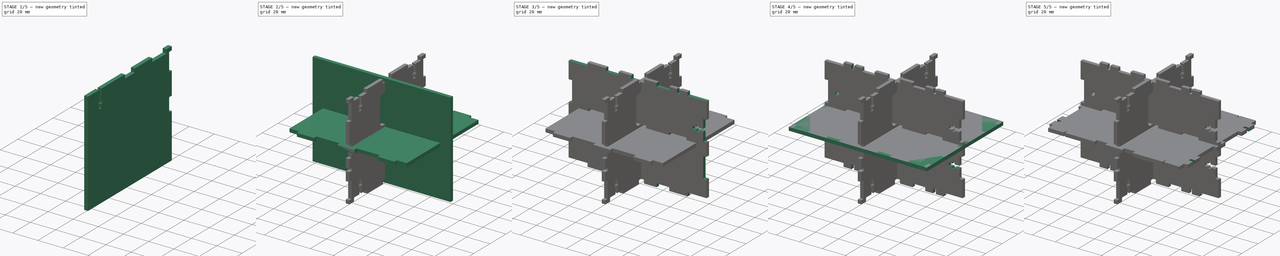
[diagram: build sequence overview — one tinted view per stage of 5, left to right]
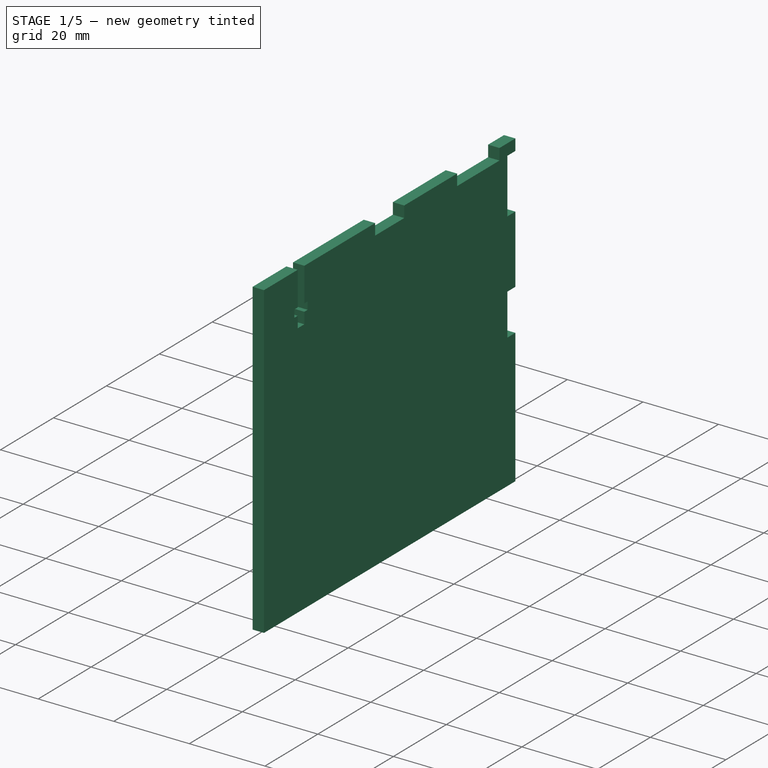
[diagram: stage 1 of 5 — iso view after this stage's code; geometry added in this stage tinted green]
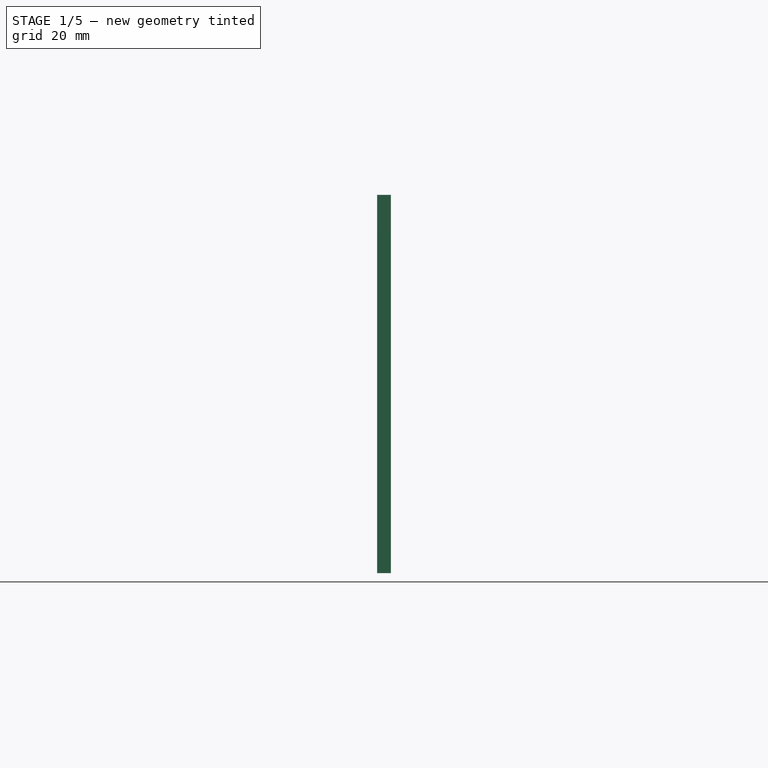
[diagram: stage 1 of 5 — front view after this stage's code; geometry added in this stage tinted green]
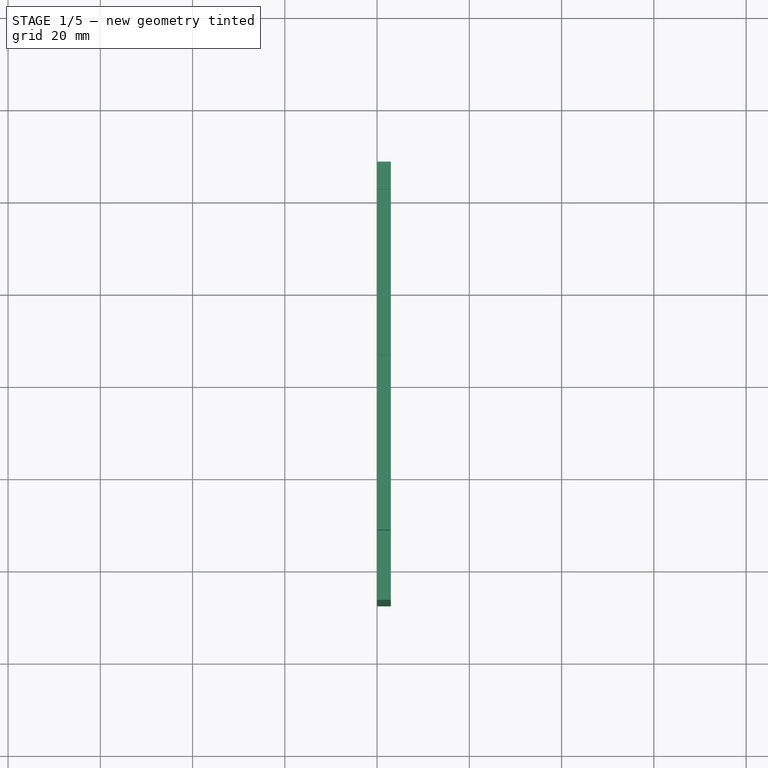
[diagram: stage 1 of 5 — top view after this stage's code; geometry added in this stage tinted green]
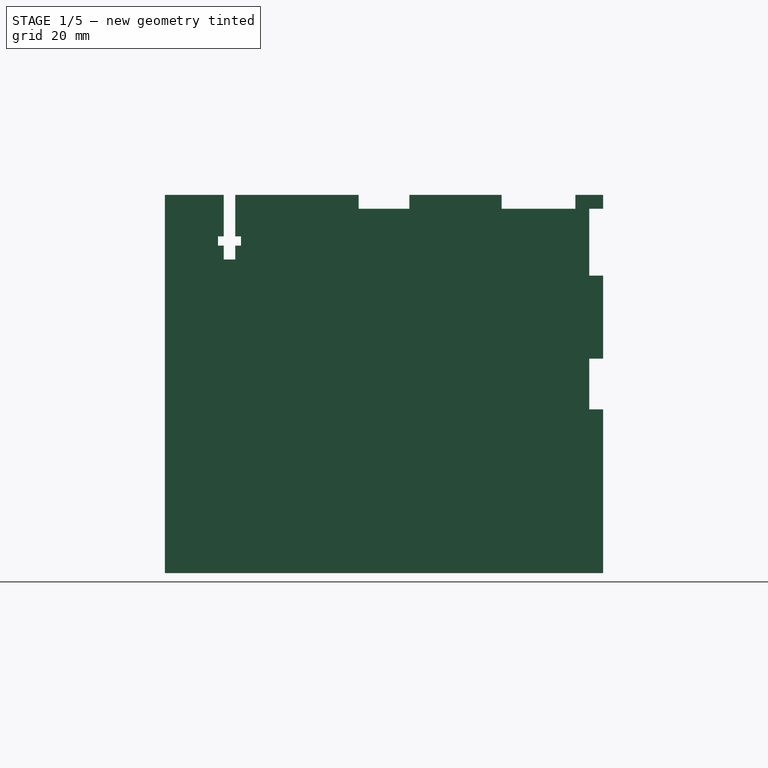
[diagram: stage 1 of 5 — right view after this stage's code; geometry added in this stage tinted green]
FCSTD DOCUMENT  (FreeCAD 0.18R16131 (Git))
Label: Lushroom_Pi
License: All rights reserved
LicenseURL: http://en.wikipedia.org/wiki/All_rights_reserved
objects: Sketcher::SketchObject×29, PartDesign::Mirrored×27, PartDesign::Pocket×22, PartDesign::MultiTransform×14, PartDesign::Pad×7, PartDesign::Body×7, Drawing::FeatureViewPart×7, PartDesign::LinearPattern×4, Drawing::FeaturePage×1
note: 139 computed .brp shape members not serialized (recipe doc carries the construction recipe); baked Part::Feature solids carry a one-line shape summary decoded from their .brp

FEATURE [PartDesign::Body] Body002  label="Mid"
  Group = -> [Sketch008,Pad004,Sketch019,Pocket014,MultiTransform009,Mirrored017,Mirrored018]
  Origin = -> Origin002
  Placement = pos=(0,0,2) rot=(0,0,1;0rad)
  Tip = -> MultiTransform009
FEATURE [Sketcher::SketchObject] Sketch020
  MapMode = 5
  Placement = pos=(0,0,0) rot=(0.57735,0.57735,0.57735;2.0944rad)
  Support = -> [YZ_Plane005]
  sketch-geometry (4):
    g0: LineSegment StartX=-47.5 StartY=41 StartZ=0 EndX=47.5 EndY=41 EndZ=0
    g1: LineSegment StartX=47.5 StartY=41 StartZ=0 EndX=47.5 EndY=-41 EndZ=0
    g2: LineSegment StartX=47.5 StartY=-41 StartZ=0 EndX=-47.5 EndY=-41 EndZ=0
    g3: LineSegment StartX=-47.5 StartY=-41 StartZ=0 EndX=-47.5 EndY=41 EndZ=0
  constraints (10):
    c: Coincident(g0,g1)
    c: Coincident(g1,g2)
    c: Coincident(g2,g3)
    c: Coincident(g3,g0)
    c: Horizontal(g2)
    c: Vertical(g3)
    c: Symmetric(g0,g0,g-2)
    c: Symmetric(g1,g0,g-1)
    c: DistanceX(g0,g0) = 95
    c: DistanceY(g1,g1) = 82
FEATURE [PartDesign::Pad] Pad005
  Length = 3
  Length2 = 100
  Placement = pos=(0,0,0) rot=(0.57735,0.57735,0.57735;2.0944rad)
  Profile = -> Sketch020
  Type = 0
FEATURE [Sketcher::SketchObject] Sketch021
  MapMode = 5
  Placement = pos=(0,0,0) rot=(0.57735,0.57735,0.57735;2.0944rad)
  Support = -> [YZ_Plane005]
  sketch-geometry (20):
    g0: LineSegment StartX=-5.5 StartY=41 StartZ=0 EndX=5.5 EndY=41 EndZ=0
    g1: LineSegment StartX=5.5 StartY=41 StartZ=0 EndX=5.5 EndY=38 EndZ=0
    g2: LineSegment StartX=5.5 StartY=38 StartZ=0 EndX=-5.5 EndY=38 EndZ=0
    g3: LineSegment StartX=-5.5 StartY=38 StartZ=0 EndX=-5.5 EndY=41 EndZ=0
    g4: LineSegment StartX=-41.5 StartY=41 StartZ=0 EndX=-25.5 EndY=41 EndZ=0
    g5: LineSegment StartX=-25.5 StartY=41 StartZ=0 EndX=-25.5 EndY=38 EndZ=0
    g6: LineSegment StartX=-25.5 StartY=38 StartZ=0 EndX=-41.5 EndY=38 EndZ=0
    g7: LineSegment StartX=-41.5 StartY=38 StartZ=0 EndX=-41.5 EndY=41 EndZ=0
    g8: LineSegment StartX=25.5 StartY=41 StartZ=0 EndX=41.5 EndY=41 EndZ=0
    g9: LineSegment StartX=41.5 StartY=41 StartZ=0 EndX=41.5 EndY=38 EndZ=0
    g10: LineSegment StartX=41.5 StartY=38 StartZ=0 EndX=25.5 EndY=38 EndZ=0
    g11: LineSegment StartX=25.5 StartY=38 StartZ=0 EndX=25.5 EndY=41 EndZ=0
    g12: LineSegment StartX=-47.5 StartY=38 StartZ=0 EndX=-44.5 EndY=38 EndZ=0
    g13: LineSegment StartX=-44.5 StartY=38 StartZ=0 EndX=-44.5 EndY=23.5 EndZ=0
    g14: LineSegment StartX=-44.5 StartY=23.5 StartZ=0 EndX=-47.5 EndY=23.5 EndZ=0
    g15: LineSegment StartX=-47.5 StartY=23.5 StartZ=0 EndX=-47.5 EndY=38 EndZ=0
    g16: LineSegment StartX=-47.5 StartY=5.5 StartZ=0 EndX=-44.5 EndY=5.5 EndZ=0
    g17: LineSegment StartX=-44.5 StartY=5.5 StartZ=0 EndX=-44.5 EndY=-5.5 EndZ=0
    g18: LineSegment StartX=-44.5 StartY=-5.5 StartZ=0 EndX=-47.5 EndY=-5.5 EndZ=0
    g19: LineSegment StartX=-47.5 StartY=-5.5 StartZ=0 EndX=-47.5 EndY=5.5 EndZ=0
  constraints (56):
    c: Coincident(g0,g1)
    c: Coincident(g1,g2)
    c: Coincident(g2,g3)
    c: Coincident(g3,g0)
    c: Horizontal(g2)
    c: Vertical(g1)
    c: Vertical(g3)
    c: Coincident(g4,g5)
    c: Coincident(g5,g6)
    c: Coincident(g6,g7)
    c: Coincident(g7,g4)
    c: Horizontal(g4)
    c: Horizontal(g6)
    c: Vertical(g5)
    c: Vertical(g7)
    c: Coincident(g8,g9)
    c: Coincident(g9,g10)
    c: Coincident(g10,g11)
    c: Coincident(g11,g8)
    c: Horizontal(g10)
    c: Vertical(g9)
    c: Vertical(g11)
    c: DistanceX(g0,g0) = 11
    c: Symmetric(g0,g0,g-2)
    c: DistanceY(g-1,g0) = 41
    c: DistanceY(g1,g1) = 3
    c: PointOnObject(g8,g0)
    c: Equal(g1,g11)
    c: Equal(g5,g3)
    c: DistanceX(g0,g8) = 20
    c: DistanceX(g8,g8) = 16
    c: Symmetric(g4,g8,g-2)
    c: Symmetric(g4,g8,g-2)
    c: Coincident(g12,g13)
    c: Coincident(g13,g14)
    c: Coincident(g14,g15)
    c: Coincident(g15,g12)
    c: Horizontal(g12)
    c: Horizontal(g14)
    c: Vertical(g13)
    c: Vertical(g15)
    c: DistanceX(g14,g-1) = 47.5
    c: Equal(g12,g7)
    c: PointOnObject(g6,g12)
    c: Coincident(g16,g17)
    c: Coincident(g17,g18)
    c: Coincident(g18,g19)
    c: Coincident(g19,g16)
    c: Horizontal(g16)
    c: Horizontal(g18)
    c: Vertical(g17)
    c: PointOnObject(g18,g15)
    c: Equal(g16,g14)
    c: Symmetric(g16,g18,g-1)
    c: DistanceY(g18,g16) = 11
    c: DistanceY(g16,g14) = 18
FEATURE [PartDesign::Pocket] Pocket015  label="Interlocking001"
  BaseFeature = -> Pad005
  Length = 5
  Length2 = 100
  Placement = pos=(0,0,0) rot=(0.57735,0.57735,0.57735;2.0944rad)
  Profile = -> Sketch021
  Reversed = true
  Type = 1
FEATURE [PartDesign::Mirrored] Mirrored019
  MirrorPlane = -> Sketch021 [H_Axis]
  Placement = pos=(0,0,0) rot=(0.57735,0.57735,0.57735;2.0944rad)
FEATURE [Sketcher::SketchObject] Sketch022  label="Screws001"
  MapMode = 5
  Placement = pos=(0,0,0) rot=(0.57735,0.57735,0.57735;2.0944rad)
  Support = -> [YZ_Plane005]
  sketch-geometry (22):
    g0: LineSegment [constr] StartX=5.5 StartY=41 StartZ=0 EndX=-5.5 EndY=41 EndZ=0
    g1: LineSegment [constr] StartX=-5.5 StartY=41 StartZ=0 EndX=-25.5 EndY=41 EndZ=0
    g2: LineSegment [constr] StartX=-25.5 StartY=41 StartZ=0 EndX=-41.5 EndY=41 EndZ=0
    g3: LineSegment StartX=-32.25 StartY=41 StartZ=0 EndX=-32.25 EndY=32 EndZ=0
    g4: LineSegment StartX=-32.25 StartY=32 StartZ=0 EndX=-31 EndY=32 EndZ=0
    g5: LineSegment StartX=-31 StartY=32 StartZ=0 EndX=-31 EndY=30 EndZ=0
    g6: LineSegment StartX=-31 StartY=30 StartZ=0 EndX=-32.25 EndY=30 EndZ=0
    g7: LineSegment StartX=-32.25 StartY=30 StartZ=0 EndX=-32.25 EndY=27 EndZ=0
    g8: LineSegment StartX=-32.25 StartY=27 StartZ=0 EndX=-34.75 EndY=27 EndZ=0
    g9: LineSegment StartX=-34.75 StartY=27 StartZ=0 EndX=-34.75 EndY=30 EndZ=0
    g10: LineSegment StartX=-34.75 StartY=30 StartZ=0 EndX=-36 EndY=30 EndZ=0
    g11: LineSegment StartX=-36 StartY=30 StartZ=0 EndX=-36 EndY=32 EndZ=0
    g12: LineSegment StartX=-36 StartY=32 StartZ=0 EndX=-34.75 EndY=32 EndZ=0
    g13: LineSegment StartX=-34.75 StartY=32 StartZ=0 EndX=-34.75 EndY=41 EndZ=0
    g14: LineSegment [constr] StartX=-33.5 StartY=41 StartZ=0 EndX=-33.5 EndY=27 EndZ=0
    g15: LineSegment StartX=-34.75 StartY=41 StartZ=0 EndX=-32.25 EndY=41 EndZ=0
    g16: LineSegment StartX=-47.5 StartY=15.75 StartZ=0 EndX=-43.5 EndY=15.75 EndZ=0
    g17: LineSegment StartX=-43.5 StartY=15.75 StartZ=0 EndX=-43.5 EndY=13.25 EndZ=0
    g18: LineSegment StartX=-43.5 StartY=13.25 StartZ=0 EndX=-47.5 EndY=13.25 EndZ=0
    g19: LineSegment StartX=-47.5 StartY=13.25 StartZ=0 EndX=-47.5 EndY=15.75 EndZ=0
    g20: LineSegment [constr] StartX=-47.5 StartY=5.5 StartZ=0 EndX=-47.5 EndY=23.5 EndZ=0
    g21: LineSegment [constr] StartX=-47.5 StartY=14.5 StartZ=0 EndX=-43.5 EndY=14.5 EndZ=0
  constraints (64):
    c: Coincident(g0,g1)
    c: Horizontal(g1)
    c: DistanceX(g0,g0) = 11
    c: Symmetric(g0,g0,g-2)
    c: DistanceX(g1,g1) = 20
    c: Coincident(g2,g1)
    c: Horizontal(g2)
    c: DistanceX(g2,g2) = 16
    c: DistanceY(g-1,g0) = 41
    c: PointOnObject(g3,g2)
    c: Vertical(g3)
    c: Coincident(g3,g4)
    c: Horizontal(g4)
    c: Coincident(g4,g5)
    c: Vertical(g5)
    c: Coincident(g5,g6)
    c: Horizontal(g6)
    c: Coincident(g6,g7)
    c: Vertical(g7)
    c: Coincident(g7,g8)
    c: Coincident(g8,g9)
    c: Vertical(g9)
    c: Coincident(g9,g10)
    c: Coincident(g10,g11)
    c: Coincident(g11,g12)
    c: Horizontal(g12)
    c: Coincident(g12,g13)
    c: PointOnObject(g13,g2)
    c: Vertical(g13)
    c: PointOnObject(g14,g2)
    c: DistanceY(g14,g14) = 14
    c: PointOnObject(g14,g8)
    c: DistanceY(g7,g7) = 3
    c: DistanceY(g5,g5) = 2
    c: Equal(g9,g7)
    c: Equal(g11,g5)
    c: DistanceX(g10,g5) = 5
    c: DistanceX(g8,g8) = 2.5
    c: Symmetric(g7,g8,g14)
    c: Symmetric(g5,g10,g14)
    c: Symmetric(g11,g4,g14)
    c: Equal(g4,g6)
    c: Equal(g12,g10)
    c: Symmetric(g1,g2,g14)
    c: Coincident(g15,g13)
    c: Coincident(g15,g3)
    c: Coincident(g16,g17)
    c: Coincident(g17,g18)
    c: Coincident(g18,g19)
    c: Coincident(g19,g16)
    c: Horizontal(g16)
    c: Horizontal(g18)
    c: Vertical(g17)
    c: Vertical(g19)
    c: DistanceY(g-1,g20) = 5.5
    c: DistanceY(g20,g20) = 18
    c: DistanceX(g20,g-1) = 47.5
    c: PointOnObject(g21,g20)
    c: DistanceX(g21,g21) = 4
    c: Symmetric(g20,g20,g21)
    c: Symmetric(g18,g16,g21)
    c: PointOnObject(g16,g20)
    c: Equal(g16,g21)
    c: DistanceY(g17,g17) = 2.5
FEATURE [Sketcher::SketchObject] Sketch023
  MapMode = 5
  Placement = pos=(0,0,0) rot=(0.57735,0.57735,0.57735;2.0944rad)
  Support = -> [YZ_Plane005]
  sketch-geometry (14):
    g0: LineSegment StartX=-20.5 StartY=5 StartZ=0 EndX=24.5 EndY=5 EndZ=0
    g1: LineSegment StartX=27.5 StartY=8 StartZ=0 EndX=27.5 EndY=32 EndZ=0
    g2: LineSegment StartX=24.5 StartY=35 StartZ=0 EndX=-20.5 EndY=35 EndZ=0
    g3: LineSegment StartX=-23.5 StartY=32 StartZ=0 EndX=-23.5 EndY=8 EndZ=0
    g4: ArcOfCircle CenterX=24.5 CenterY=32 CenterZ=0 NormalX=0 NormalY=0 NormalZ=1 AngleXU=0 Radius=3 StartAngle=5e-16 EndAngle=1.5708
    g5: ArcOfCircle CenterX=24.5 CenterY=8 CenterZ=0 NormalX=0 NormalY=0 NormalZ=1 AngleXU=0 Radius=3 StartAngle=4.71239 EndAngle=6.28319
    g6: ArcOfCircle CenterX=-20.5 CenterY=8 CenterZ=0 NormalX=0 NormalY=0 NormalZ=1 AngleXU=0 Radius=3 StartAngle=3.14159 EndAngle=4.71239
    g7: ArcOfCircle CenterX=-20.5 CenterY=32 CenterZ=0 NormalX=0 NormalY=0 NormalZ=1 AngleXU=0 Radius=3 StartAngle=1.5708 EndAngle=3.14159
    g8: LineSegment [constr] StartX=0 StartY=0 StartZ=0 EndX=47.5 EndY=0 EndZ=0
    g9: ArcOfCircle CenterX=-13 CenterY=-14.5 CenterZ=0 NormalX=0 NormalY=0 NormalZ=1 AngleXU=0 Radius=14.5 StartAngle=1.5708 EndAngle=4.71239
    g10: ArcOfCircle CenterX=13 CenterY=-14.5 CenterZ=0 NormalX=0 NormalY=0 NormalZ=1 AngleXU=0 Radius=14.5 StartAngle=4.71239 EndAngle=7.85398
    g11: LineSegment StartX=-13 StartY=-29 StartZ=0 EndX=13 EndY=-29 EndZ=0
    g12: LineSegment StartX=-13 StartY=1.6e-15 StartZ=0 EndX=13 EndY=1.8e-15 EndZ=0
    g13: LineSegment [constr] StartX=47.5 StartY=0 StartZ=0 EndX=47.5 EndY=-41 EndZ=0
  constraints (35):
    c: Horizontal(g0)
    c: Horizontal(g2)
    c: Vertical(g1)
    c: Vertical(g3)
    c: Tangent(g2,g4) = -1.5708
    c: Tangent(g1,g4) = -1.5708
    c: Tangent(g1,g5) = -1.5708
    c: Tangent(g0,g5) = -1.5708
    c: Tangent(g0,g6) = -1.5708
    c: Tangent(g3,g6) = -1.5708
    c: Tangent(g3,g7) = -1.5708
    c: Tangent(g2,g7) = -1.5708
    c: Radius(g7) = 3
    c: Equal(g4,g7)
    c: Equal(g7,g6)
    c: Equal(g6,g5)
    c: DistanceY(g-1,g0) = 5
    c: DistanceY(g0,g2) = 30
    c: Coincident(g8,g-1)
    c: PointOnObject(g8,g-1)
    c: DistanceX(g8,g8) = 47.5
    c: DistanceX(g1,g8) = 20
    c: DistanceX(g3,g1) = 51
    c: Tangent(g9,g12) = 1.5708
    c: Tangent(g9,g11) = -1.5708
    c: Tangent(g11,g10) = -1.5708
    c: Tangent(g12,g10) = 1.5708
    c: Equal(g9,g10)
    c: DistanceY(g10,g10) = 29
    c: DistanceX(g12,g12) = 26
    c: Coincident(g13,g8)
    c: Vertical(g13)
    c: DistanceY(g13,g13) = 41
    c: DistanceY(g13,g10) = 12
    c: Symmetric(g9,g10,g-2)
FEATURE [Sketcher::SketchObject] Sketch024  label="Left_Base"
  MapMode = 5
  Placement = pos=(0,0,0) rot=(0.57735,0.57735,0.57735;2.0944rad)
  Support = -> [YZ_Plane005]
  sketch-geometry (4):
    g0: LineSegment StartX=-47.5 StartY=41 StartZ=0 EndX=47.5 EndY=41 EndZ=0
    g1: LineSegment StartX=47.5 StartY=41 StartZ=0 EndX=47.5 EndY=-41 EndZ=0
    g2: LineSegment StartX=47.5 StartY=-41 StartZ=0 EndX=-47.5 EndY=-41 EndZ=0
    g3: LineSegment StartX=-47.5 StartY=-41 StartZ=0 EndX=-47.5 EndY=41 EndZ=0
  constraints (10):
    c: Coincident(g0,g1)
    c: Coincident(g1,g2)
    c: Coincident(g2,g3)
    c: Coincident(g3,g0)
    c: Horizontal(g2)
    c: Vertical(g3)
    c: Symmetric(g0,g0,g-2)
    c: Symmetric(g1,g0,g-1)
    c: DistanceX(g0,g0) = 95
    c: DistanceY(g1,g1) = 82
FEATURE [PartDesign::Pad] Pad006
  Length = 3
  Length2 = 100
  Placement = pos=(0,0,0) rot=(0.57735,0.57735,0.57735;2.0944rad)
  Profile = -> Sketch024
  Type = 0
FEATURE [Sketcher::SketchObject] Sketch025  label="Left_Interlocking"
  MapMode = 5
  Placement = pos=(0,0,0) rot=(0.57735,0.57735,0.57735;2.0944rad)
  Support = -> [YZ_Plane005]
  sketch-geometry (16):
    g0: LineSegment StartX=-5.5 StartY=41 StartZ=0 EndX=5.5 EndY=41 EndZ=0
    g1: LineSegment StartX=5.5 StartY=41 StartZ=0 EndX=5.5 EndY=38 EndZ=0
    g2: LineSegment StartX=5.5 StartY=38 StartZ=0 EndX=-5.5 EndY=38 EndZ=0
    g3: LineSegment StartX=-5.5 StartY=38 StartZ=0 EndX=-5.5 EndY=41 EndZ=0
    g4: LineSegment StartX=25.5 StartY=41 StartZ=0 EndX=41.5 EndY=41 EndZ=0
    g5: LineSegment StartX=41.5 StartY=41 StartZ=0 EndX=41.5 EndY=38 EndZ=0
    g6: LineSegment StartX=41.5 StartY=38 StartZ=0 EndX=25.5 EndY=38 EndZ=0
    g7: LineSegment StartX=25.5 StartY=38 StartZ=0 EndX=25.5 EndY=41 EndZ=0
    g8: LineSegment StartX=47.5 StartY=5.5 StartZ=0 EndX=44.5 EndY=5.5 EndZ=0
    g9: LineSegment StartX=44.5 StartY=5.5 StartZ=0 EndX=44.5 EndY=-5.5 EndZ=0
    g10: LineSegment StartX=44.5 StartY=-5.5 StartZ=0 EndX=47.5 EndY=-5.5 EndZ=0
    g11: LineSegment StartX=47.5 StartY=-5.5 StartZ=0 EndX=47.5 EndY=5.5 EndZ=0
    g12: LineSegment StartX=47.5 StartY=38 StartZ=0 EndX=44.5 EndY=38 EndZ=0
    g13: LineSegment StartX=44.5 StartY=38 StartZ=0 EndX=44.5 EndY=23.5 EndZ=0
    g14: LineSegment StartX=44.5 StartY=23.5 StartZ=0 EndX=47.5 EndY=23.5 EndZ=0
    g15: LineSegment StartX=47.5 StartY=23.5 StartZ=0 EndX=47.5 EndY=38 EndZ=0
  constraints (46):
    c: Coincident(g0,g1)
    c: Coincident(g1,g2)
    c: Coincident(g2,g3)
    c: Coincident(g3,g0)
    c: Horizontal(g2)
    c: Vertical(g1)
    c: Vertical(g3)
    c: Coincident(g4,g5)
    c: Coincident(g5,g6)
    c: Coincident(g6,g7)
    c: Coincident(g7,g4)
    c: Horizontal(g4)
    c: Horizontal(g6)
    c: Vertical(g5)
    c: Vertical(g7)
    c: DistanceX(g0,g0) = 11
    c: Symmetric(g0,g0,g-2)
    c: DistanceY(g-1,g0) = 41
    c: DistanceY(g1,g1) = 3
    c: PointOnObject(g4,g0)
    c: Equal(g1,g7)
    c: DistanceX(g0,g4) = 20
    c: DistanceX(g4,g4) = 16
    c: Coincident(g8,g9)
    c: Coincident(g9,g10)
    c: Coincident(g10,g11)
    c: Coincident(g11,g8)
    c: Horizontal(g8)
    c: Horizontal(g10)
    c: Vertical(g9)
    c: Coincident(g12,g13)
    c: Coincident(g13,g14)
    c: Coincident(g14,g15)
    c: Coincident(g15,g12)
    c: Horizontal(g12)
    c: Horizontal(g14)
    c: Vertical(g13)
    c: Vertical(g15)
    c: DistanceX(g-1,g8) = 47.5
    c: Equal(g8,g1)
    c: DistanceY(g11,g11) = 11
    c: Symmetric(g8,g10,g-1)
    c: PointOnObject(g14,g11)
    c: Equal(g14,g8)
    c: DistanceY(g8,g14) = 18
    c: PointOnObject(g12,g6)
FEATURE [PartDesign::Pocket] Pocket018
  BaseFeature = -> Pad006
  Length = 5
  Length2 = 100
  Placement = pos=(0,0,0) rot=(0.57735,0.57735,0.57735;2.0944rad)
  Profile = -> Sketch025
  Reversed = true
  Type = 1
FEATURE [Sketcher::SketchObject] Sketch026  label="Screw1_Sketch"
  MapMode = 5
  Placement = pos=(0,0,0) rot=(0.57735,0.57735,0.57735;2.0944rad)
  Support = -> [YZ_Plane005]
  sketch-geometry (16):
    g0: LineSegment [constr] StartX=5.5 StartY=41 StartZ=0 EndX=-5.5 EndY=41 EndZ=0
    g1: LineSegment [constr] StartX=-5.5 StartY=41 StartZ=0 EndX=-25.5 EndY=41 EndZ=0
    g2: LineSegment [constr] StartX=-25.5 StartY=41 StartZ=0 EndX=-41.5 EndY=41 EndZ=0
    g3: LineSegment StartX=-32.25 StartY=41 StartZ=0 EndX=-32.25 EndY=32 EndZ=0
    g4: LineSegment StartX=-32.25 StartY=32 StartZ=0 EndX=-31 EndY=32 EndZ=0
    g5: LineSegment StartX=-31 StartY=32 StartZ=0 EndX=-31 EndY=30 EndZ=0
    g6: LineSegment StartX=-31 StartY=30 StartZ=0 EndX=-32.25 EndY=30 EndZ=0
    g7: LineSegment StartX=-32.25 StartY=30 StartZ=0 EndX=-32.25 EndY=27 EndZ=0
    g8: LineSegment StartX=-32.25 StartY=27 StartZ=0 EndX=-34.75 EndY=27 EndZ=0
    g9: LineSegment StartX=-34.75 StartY=27 StartZ=0 EndX=-34.75 EndY=30 EndZ=0
    g10: LineSegment StartX=-34.75 StartY=30 StartZ=0 EndX=-36 EndY=30 EndZ=0
    g11: LineSegment StartX=-36 StartY=30 StartZ=0 EndX=-36 EndY=32 EndZ=0
    g12: LineSegment StartX=-36 StartY=32 StartZ=0 EndX=-34.75 EndY=32 EndZ=0
    g13: LineSegment StartX=-34.75 StartY=32 StartZ=0 EndX=-34.75 EndY=41 EndZ=0
    g14: LineSegment [constr] StartX=-33.5 StartY=41 StartZ=0 EndX=-33.5 EndY=27 EndZ=0
    g15: LineSegment StartX=-34.75 StartY=41 StartZ=0 EndX=-32.25 EndY=41 EndZ=0
  constraints (46):
    c: Coincident(g0,g1)
    c: Horizontal(g1)
    c: DistanceX(g0,g0) = 11
    c: Symmetric(g0,g0,g-2)
    c: DistanceX(g1,g1) = 20
    c: Coincident(g2,g1)
    c: Horizontal(g2)
    c: DistanceX(g2,g2) = 16
    c: DistanceY(g-1,g0) = 41
    c: PointOnObject(g3,g2)
    c: Vertical(g3)
    c: Coincident(g3,g4)
    c: Horizontal(g4)
    c: Coincident(g4,g5)
    c: Vertical(g5)
    c: Coincident(g5,g6)
    c: Horizontal(g6)
    c: Coincident(g6,g7)
    c: Vertical(g7)
    c: Coincident(g7,g8)
    c: Coincident(g8,g9)
    c: Vertical(g9)
    c: Coincident(g9,g10)
    c: Coincident(g10,g11)
    c: Coincident(g11,g12)
    c: Horizontal(g12)
    c: Coincident(g12,g13)
    c: PointOnObject(g13,g2)
    c: Vertical(g13)
    c: PointOnObject(g14,g2)
    c: DistanceY(g14,g14) = 14
    c: PointOnObject(g14,g8)
    c: DistanceY(g7,g7) = 3
    c: DistanceY(g5,g5) = 2
    c: Equal(g9,g7)
    c: Equal(g11,g5)
    c: DistanceX(g10,g5) = 5
    c: DistanceX(g8,g8) = 2.5
    c: Symmetric(g7,g8,g14)
    c: Symmetric(g5,g10,g14)
    c: Symmetric(g11,g4,g14)
    c: Equal(g4,g6)
    c: Equal(g12,g10)
    c: Symmetric(g1,g2,g14)
    c: Coincident(g15,g13)
    c: Coincident(g15,g3)
FEATURE [PartDesign::Pocket] Pocket019  label="Screw1"
  BaseFeature = -> Pocket018
  Length = 5
  Length2 = 100
  Placement = pos=(0,0,0) rot=(0.57735,0.57735,0.57735;2.0944rad)
  Profile = -> Sketch026
  Reversed = true
  Type = 1
FEATURE [PartDesign::Body] Body006  label="Left"
  Group = -> [Pad006,Pocket018,Pocket019,MultiTransform011,Mirrored022,Mirrored023,Sketch027,Pocket020,MultiTransform012,Mirrored024,Mirrored025,Sketch028,Pocket021]
  Origin = -> Origin006
  Placement = pos=(-60,0,0) rot=(0,0,1;0rad)
  Tip = -> Pocket021
FEATURE [PartDesign::Mirrored] Mirrored026
  MirrorPlane = -> Sketch022 [V_Axis]
  Placement = pos=(0,0,0) rot=(0.57735,0.57735,0.57735;2.0944rad)
FEATURE [PartDesign::Mirrored] Mirrored027
  MirrorPlane = -> Sketch022 [H_Axis]
  Placement = pos=(0,0,0) rot=(0.57735,0.57735,0.57735;2.0944rad)
FEATURE [Drawing::FeatureViewPart] Ortho  label="Ortho_Bottom"
  Direction = (0,0,-1)
  HiddenWidth = 0.15
  LineWidth = 0.35
  Rotation = 180
  ShowHiddenLines = false
  ShowSmoothLines = false
  Source = -> Body
  Tolerance = 0.05
  ViewResult = <blob: 13495 chars omitted>
  Visible = true
  X = 70
  Y = 70
FEATURE [Drawing::FeatureViewPart] Ortho001  label="Ortho_Top"
  Direction = (0,0,1)
  HiddenWidth = 0.15
  LineWidth = 0.35
  Rotation = 0
  ShowHiddenLines = false
  ShowSmoothLines = false
  Source = -> Body001
  Tolerance = 0.05
  ViewResult = <blob: 6505 chars omitted>
  Visible = true
  X = 200
  Y = 70
FEATURE [Drawing::FeatureViewPart] Ortho002  label="Ortho_Mid"
  Direction = (0,0,1)
  HiddenWidth = 0.15
  LineWidth = 0.35
  Rotation = 0
  ShowHiddenLines = false
  ShowSmoothLines = false
  Source = -> Body002
  Tolerance = 0.05
  ViewResult = <g id="Ortho_0_0"\n   transform="rotate(0,320,70) translate(320,70) scale(1,1)"\n  >\n<g   fill="none"\n   stroke="rgb(0, 0, 0)"\n   stroke-linecap="butt"\n   stroke-linejoin="miter"\n   stroke-width="0.350000"\n   transform="scale(1,-1)"\n  >\n<path id= "1" d=" M -42.5 -47.5 L -27.5 -47.5 " />\n<path id= "2" d=" M -27.5 -47.5 L -27.5 -44.5 " />\n<path id= "3" d=" M -51 44.5 L -42.5 44.5 " />\n<path id= "4" d=" M -42.5 44.5 L -42.5 47.5 " />\n<path id= "5" d=" M -27.5 47.5 L -42.5 47.5 " />\n<path id= "6" d=" M -27.5 47.5 L -27.5 44.5 " />\n<path id= "7" d=" M -27.5 44.5 L -7.5 44.5 " />\n<path id= "8" d=" M -7.5 44.5 L -7.5 47.5 " />\n<path id= "9" d=" M 7.5 47.5 L -7.5 47.5 " />\n<path id= "10" d=" M 7.5 44.5 L 7.5 47.5 " />\n<path id= "11" d=" M 27.5 44.5 L 7.5 44.5 " />\n<path id= "12" d=" M 27.5 47.5 L 27.5 44.5 " />\n<path id= "13" d=" M 42.5 47.5 L 27.5 47.5 " />\n<path id= "14" d=" M 42.5 44.5 L 42.5 47.5 " />\n<path id= "15" d=" M 51 44.5 L 42.5 44.5 " />\n<path id= "16" d=" M 51 -44.5 L 51 44.5 " />\n<path id= "17" d=" M 51 -44.5 L 42.5 -44.5 " />\n<path id= "18" d=" M 42.5 -44.5 L 42.5 -47.5 " />\n<path id= "19" d=" M 27.5 -47.5 L 42.5 -47.5 " />\n<path id= "20" d=" M 27.5 -47.5 L 27.5 -44.5 " />\n<path id= "21" d=" M 27.5 -44.5 L 7.5 -44.5 " />\n<path id= "22" d=" M 7.5 -44.5 L 7.5 -47.5 " />\n<path id= "23" d=" M -7.5 -47.5 L 7.5 -47.5 " />\n<path id= "24" d=" M -7.5 -44.5 L -7.5 -47.5 " />\n<path id= "25" d=" M -27.5 -44.5 L -7.5 -44.5 " />\n<path id= "26" d=" M -42.5 -44.5 L -42.5 -47.5 " />\n<path id= "27" d=" M -51 -44.5 L -42.5 -44.5 " />\n<path id= "28" d=" M -51 44.5 L -51 -44.5 " />\n</g>\n</g>
  Visible = true
  X = 320
  Y = 70
FEATURE [Drawing::FeatureViewPart] Ortho003  label="Ortho_Front"
  Direction = (0,1,0)
  HiddenWidth = 0.15
  LineWidth = 0.35
  Rotation = 90
  ShowHiddenLines = false
  ShowSmoothLines = false
  Source = -> Body003
  Tolerance = 0.05
  ViewResult = <blob: 5884 chars omitted>
  Visible = true
  X = 70
  Y = 180
FEATURE [Drawing::FeatureViewPart] Ortho004  label="Ortho_Back"
  Direction = (0,-1,0)
  HiddenWidth = 0.15
  LineWidth = 0.35
  Rotation = 90
  ShowHiddenLines = false
  ShowSmoothLines = false
  Source = -> Body004
  Tolerance = 0.05
  ViewResult = <blob: 10416 chars omitted>
  Visible = true
  X = 200.5
  Y = 180
FEATURE [PartDesign::Mirrored] Mirrored028
  MirrorPlane = -> Sketch021 [V_Axis]
  Placement = pos=(0,0,0) rot=(0.57735,0.57735,0.57735;2.0944rad)
FEATURE [PartDesign::MultiTransform] MultiTransform010
  BaseFeature = -> Pocket015
  Originals = -> [Pocket015]
  Placement = pos=(0,0,0) rot=(0.57735,0.57735,0.57735;2.0944rad)
  Transformations = -> [Mirrored019,Mirrored028]
FEATURE [PartDesign::Pocket] Pocket016
  BaseFeature = -> MultiTransform010
  Length = 5
  Length2 = 100
  Placement = pos=(0,0,0) rot=(0.57735,0.57735,0.57735;2.0944rad)
  Profile = -> Sketch022
  Reversed = true
  Type = 1
FEATURE [PartDesign::Pocket] Pocket017
  BaseFeature = -> Pocket016
  Length = 5
  Length2 = 100
  Placement = pos=(0,0,0) rot=(0.57735,0.57735,0.57735;2.0944rad)
  Profile = -> Sketch023
  Reversed = true
  Type = 1
FEATURE [PartDesign::MultiTransform] MultiTransform013
  BaseFeature = -> Pocket017
  Originals = -> [Pocket016]
  Placement = pos=(0,0,0) rot=(0.57735,0.57735,0.57735;2.0944rad)
  Transformations = -> [Mirrored026,Mirrored027]
FEATURE [PartDesign::Body] Body005  label="Right"
  Group = -> [Sketch020,Pad005,Sketch021,Pocket015,MultiTransform010,Mirrored019,Sketch022,Pocket016,Sketch023,Pocket017,MultiTransform013,Mirrored026,Mirrored027,Mirrored028]
  Origin = -> Origin005
  Placement = pos=(57,0,0) rot=(0,0,1;0rad)
  Tip = -> MultiTransform013
FEATURE [Drawing::FeatureViewPart] Ortho005  label="Ortho_Right"
  Direction = (1,0,0)
  HiddenWidth = 0.15
  LineWidth = 0.35
  Rotation = -90
  ShowHiddenLines = false
  ShowSmoothLines = false
  Source = -> Body005
  Tolerance = 0.05
  ViewResult = <blob: 6273 chars omitted>
  Visible = true
  X = 320
  Y = 180
FEATURE [Drawing::FeatureViewPart] Ortho006  label="Ortho_0_0"
  Direction = (-1,0,0)
  HiddenWidth = 0.15
  LineWidth = 0.35
  Rotation = -90
  ShowHiddenLines = false
  ShowSmoothLines = false
  Source = -> Body006
  Tolerance = 0.05
  ViewResult = <blob: 5821 chars omitted>
  Visible = true
  X = 420.5
  Y = 180
FEATURE [Drawing::FeaturePage] Page
  Group = -> [Ortho,Ortho001,Ortho002,Ortho003,Ortho004,Ortho005,Ortho006]
  Template = /Applications/FreeCAD/0.18/FreeCAD.app/Contents/Resources/data/Mod/Drawing/Templates/A1_Landscape_plain.svg
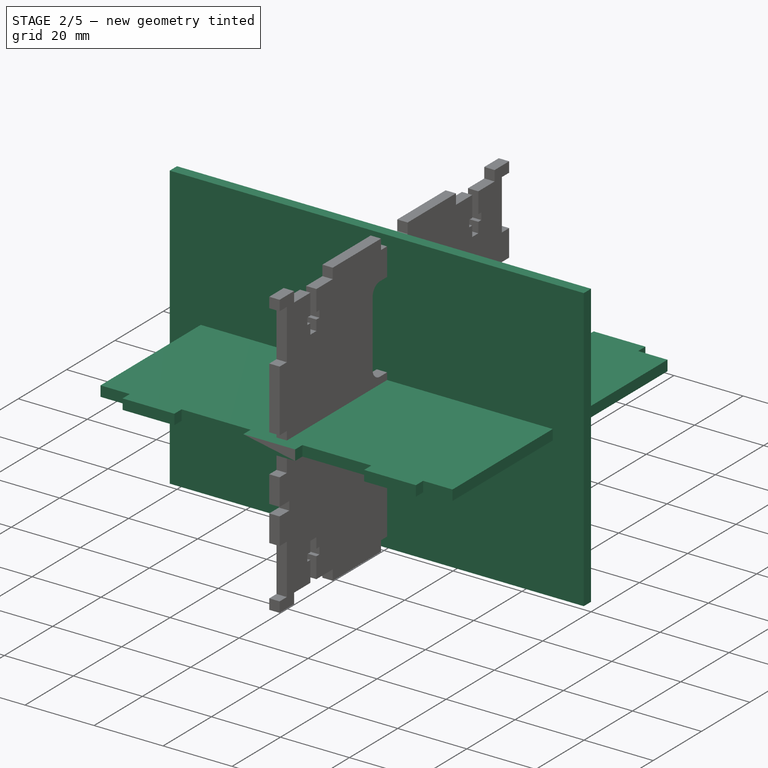
[diagram: stage 2 of 5 — iso view after this stage's code; geometry added in this stage tinted green]
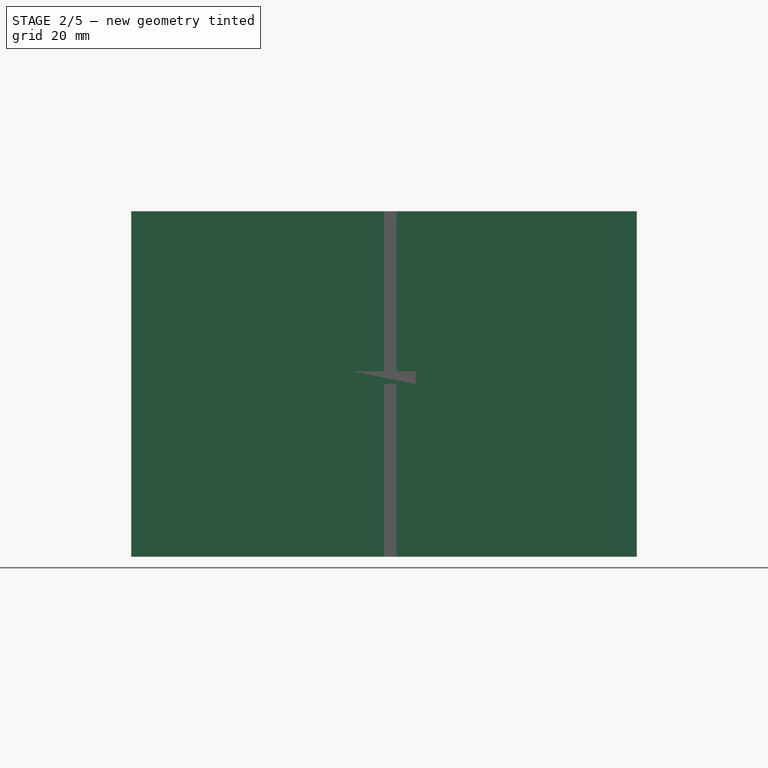
[diagram: stage 2 of 5 — front view after this stage's code; geometry added in this stage tinted green]
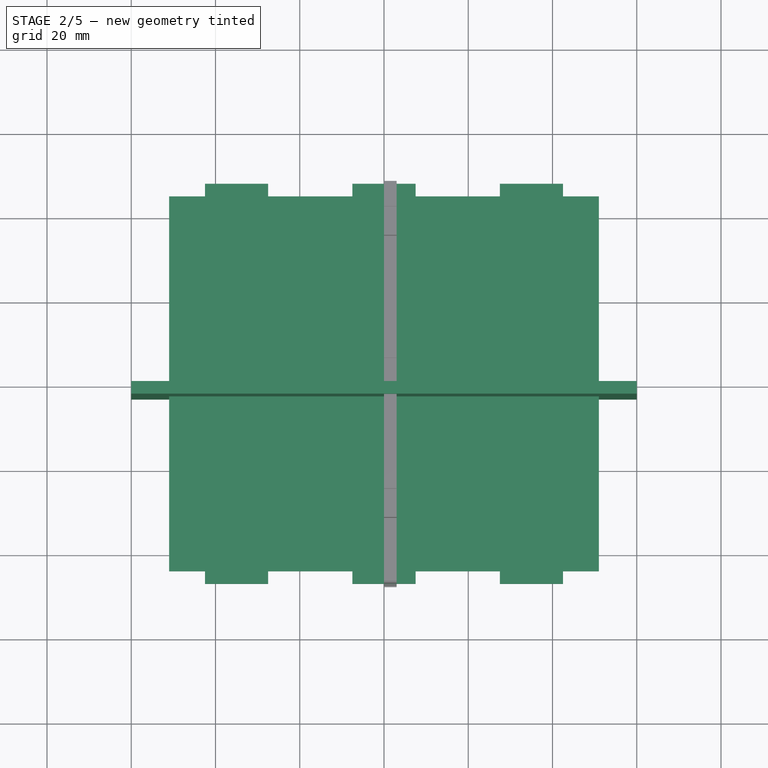
[diagram: stage 2 of 5 — top view after this stage's code; geometry added in this stage tinted green]
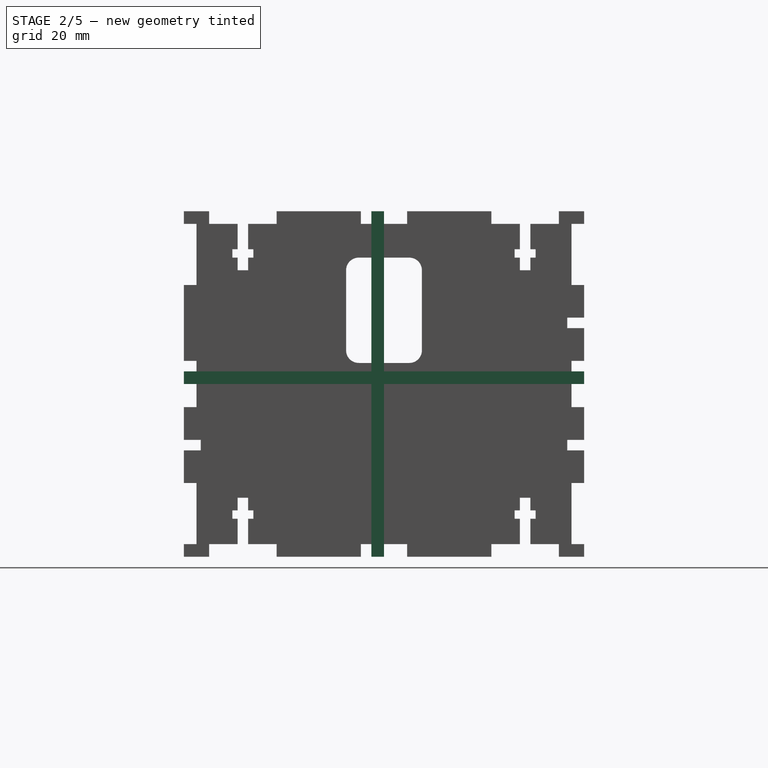
[diagram: stage 2 of 5 — right view after this stage's code; geometry added in this stage tinted green]
FEATURE [PartDesign::Body] Body001  label="Top"
  Group = -> [Pad001,Pocket003,MultiTransform003,Mirrored006,Mirrored007,Pocket004,MultiTransform004,Mirrored008,Mirrored009,Sketch007,Pocket005]
  Origin = -> Origin001
  Placement = pos=(0,0,38) rot=(0,0,1;0rad)
  Tip = -> Pocket005
FEATURE [Sketcher::SketchObject] Sketch008
  MapMode = 5
  Support = -> [XY_Plane002]
  sketch-geometry (4):
    g0: LineSegment StartX=-51 StartY=-47.5 StartZ=0 EndX=51 EndY=-47.5 EndZ=0
    g1: LineSegment StartX=51 StartY=-47.5 StartZ=0 EndX=51 EndY=47.5 EndZ=0
    g2: LineSegment StartX=51 StartY=47.5 StartZ=0 EndX=-51 EndY=47.5 EndZ=0
    g3: LineSegment StartX=-51 StartY=47.5 StartZ=0 EndX=-51 EndY=-47.5 EndZ=0
  constraints (10):
    c: Coincident(g0,g1)
    c: Coincident(g1,g2)
    c: Coincident(g2,g3)
    c: Coincident(g3,g0)
    c: Horizontal(g0)
    c: DistanceY(g1,g1) = 95
    c: Symmetric(g1,g0,g-1)
    c: Vertical(g3)
    c: DistanceX(g2,g2) = 102
    c: Symmetric(g1,g2,g-2)
FEATURE [Sketcher::SketchObject] Sketch009  label="Front_Base"
  MapMode = 5
  Placement = pos=(0,0,0) rot=(1,0,0;1.5708rad)
  Support = -> [XZ_Plane003]
  sketch-geometry (4):
    g0: LineSegment StartX=-60 StartY=-41 StartZ=0 EndX=60 EndY=-41 EndZ=0
    g1: LineSegment StartX=60 StartY=-41 StartZ=0 EndX=60 EndY=41 EndZ=0
    g2: LineSegment StartX=60 StartY=41 StartZ=0 EndX=-60 EndY=41 EndZ=0
    g3: LineSegment StartX=-60 StartY=41 StartZ=0 EndX=-60 EndY=-41 EndZ=0
  constraints (10):
    c: Coincident(g0,g1)
    c: Coincident(g1,g2)
    c: Coincident(g2,g3)
    c: Coincident(g3,g0)
    c: Horizontal(g0)
    c: Vertical(g3)
    c: DistanceX(g2,g2) = 120
    c: DistanceY(g1,g1) = 82
    c: Symmetric(g1,g0,g-1)
    c: Symmetric(g2,g1,g-2)
FEATURE [Sketcher::SketchObject] Sketch010  label="Front_Interlocking_Sides"
  ExternalGeometry = -> [Sketch009]
  MapMode = 5
  Placement = pos=(0,0,0) rot=(1,0,0;1.5708rad)
  Support = -> [XZ_Plane003]
  sketch-geometry (16):
    g0: LineSegment StartX=-60 StartY=41 StartZ=0 EndX=-43.5 EndY=41 EndZ=0
    g1: LineSegment StartX=-43.5 StartY=41 StartZ=0 EndX=-43.5 EndY=38 EndZ=0
    g2: LineSegment StartX=-43.5 StartY=38 StartZ=0 EndX=-60 EndY=38 EndZ=0
    g3: LineSegment StartX=-60 StartY=38 StartZ=0 EndX=-60 EndY=41 EndZ=0
    g4: LineSegment StartX=-27.5 StartY=41 StartZ=0 EndX=-16.5 EndY=41 EndZ=0
    g5: LineSegment StartX=-16.5 StartY=41 StartZ=0 EndX=-16.5 EndY=38 EndZ=0
    g6: LineSegment StartX=-16.5 StartY=38 StartZ=0 EndX=-27.5 EndY=38 EndZ=0
    g7: LineSegment StartX=-27.5 StartY=38 StartZ=0 EndX=-27.5 EndY=41 EndZ=0
    g8: LineSegment StartX=-5.5 StartY=41 StartZ=0 EndX=5.5 EndY=41 EndZ=0
    g9: LineSegment StartX=5.5 StartY=41 StartZ=0 EndX=5.5 EndY=38 EndZ=0
    g10: LineSegment StartX=5.5 StartY=38 StartZ=0 EndX=-5.5 EndY=38 EndZ=0
    g11: LineSegment StartX=-5.5 StartY=38 StartZ=0 EndX=-5.5 EndY=41 EndZ=0
    g12: LineSegment StartX=-60 StartY=23.5 StartZ=0 EndX=-57 EndY=23.5 EndZ=0
    g13: LineSegment StartX=-57 StartY=23.5 StartZ=0 EndX=-57 EndY=5.5 EndZ=0
    g14: LineSegment StartX=-57 StartY=5.5 StartZ=0 EndX=-60 EndY=5.5 EndZ=0
    g15: LineSegment StartX=-60 StartY=5.5 StartZ=0 EndX=-60 EndY=23.5 EndZ=0
  constraints (46):
    c: Coincident(g0,g1)
    c: Coincident(g1,g2)
    c: Coincident(g2,g3)
    c: Coincident(g3,g0)
    c: Horizontal(g0)
    c: Horizontal(g2)
    c: Vertical(g1)
    c: Vertical(g3)
    c: Coincident(g4,g5)
    c: Coincident(g5,g6)
    c: Coincident(g6,g7)
    c: Coincident(g7,g4)
    c: Horizontal(g4)
    c: Horizontal(g6)
    c: Vertical(g5)
    c: Vertical(g7)
    c: Coincident(g8,g9)
    c: Coincident(g9,g10)
    c: Coincident(g10,g11)
    c: Coincident(g11,g8)
    c: Horizontal(g10)
    c: Vertical(g9)
    c: Vertical(g11)
    c: Coincident(g0,g-4)
    c: PointOnObject(g4,g-3)
    c: PointOnObject(g8,g-3)
    c: DistanceX(g10,g10) = 11
    c: DistanceY(g9,g9) = 3
    c: Equal(g1,g5)
    c: Equal(g5,g9)
    c: Equal(g6,g10)
    c: Symmetric(g8,g8,g-2)
    c: DistanceX(g4,g8) = 11
    c: Coincident(g12,g13)
    c: Coincident(g13,g14)
    c: Coincident(g14,g15)
    c: Coincident(g15,g12)
    c: Horizontal(g12)
    c: Horizontal(g14)
    c: Vertical(g13)
    c: Vertical(g15)
    c: Equal(g12,g1)
    c: PointOnObject(g12,g-4)
    c: DistanceY(g13,g13) = 18
    c: DistanceY(g-1,g14) = 5.5
    c: DistanceX(g0,g4) = 16
FEATURE [PartDesign::Pad] Pad002
  Length = 3
  Length2 = 100
  Placement = pos=(0,0,0) rot=(1,0,0;1.5708rad)
  Profile = -> Sketch009
  Type = 0
FEATURE [PartDesign::Body] Body004  label="Back"
  Group = -> [Pad003,Pocket010,MultiTransform006,Mirrored012,Mirrored013,Pocket011,Pocket012,MultiTransform007,Mirrored014,Mirrored015,Sketch018,Pocket013,MultiTransform008,LinearPattern002,LinearPattern003,Mirrored016]
  Origin = -> Origin004
  Placement = pos=(0,47.5,0) rot=(0,0,1;0rad)
  Tip = -> MultiTransform008
FEATURE [PartDesign::Pad] Pad004
  Length = 3
  Length2 = 100
  Profile = -> Sketch008
  Type = 0
FEATURE [Sketcher::SketchObject] Sketch019  label="Interlocking"
  ExternalGeometry = -> [Pad004]
  MapMode = 5
  Support = -> [XY_Plane002]
  sketch-geometry (8):
    g0: LineSegment StartX=-51 StartY=47.5 StartZ=0 EndX=-42.5 EndY=47.5 EndZ=0
    g1: LineSegment StartX=-42.5 StartY=47.5 StartZ=0 EndX=-42.5 EndY=44.5 EndZ=0
    g2: LineSegment StartX=-42.5 StartY=44.5 StartZ=0 EndX=-51 EndY=44.5 EndZ=0
    g3: LineSegment StartX=-51 StartY=44.5 StartZ=0 EndX=-51 EndY=47.5 EndZ=0
    g4: LineSegment StartX=-27.5 StartY=47.5 StartZ=0 EndX=-7.5 EndY=47.5 EndZ=0
    g5: LineSegment StartX=-7.5 StartY=47.5 StartZ=0 EndX=-7.5 EndY=44.5 EndZ=0
    g6: LineSegment StartX=-7.5 StartY=44.5 StartZ=0 EndX=-27.5 EndY=44.5 EndZ=0
    g7: LineSegment StartX=-27.5 StartY=44.5 StartZ=0 EndX=-27.5 EndY=47.5 EndZ=0
  constraints (23):
    c: Coincident(g0,g1)
    c: Coincident(g1,g2)
    c: Coincident(g2,g3)
    c: Coincident(g3,g0)
    c: Horizontal(g0)
    c: Horizontal(g2)
    c: Vertical(g1)
    c: Vertical(g3)
    c: Coincident(g0,g-3)
    c: Coincident(g4,g5)
    c: Coincident(g5,g6)
    c: Coincident(g6,g7)
    c: Coincident(g7,g4)
    c: Horizontal(g4)
    c: Horizontal(g6)
    c: Vertical(g5)
    c: Vertical(g7)
    c: PointOnObject(g4,g-3)
    c: DistanceX(g4,g-1) = 7.5
    c: DistanceX(g4,g4) = 20
    c: DistanceY(g5,g5) = 3
    c: DistanceX(g0,g4) = 15
    c: Equal(g1,g7)
FEATURE [PartDesign::Pocket] Pocket014
  BaseFeature = -> Pad004
  Length = 5
  Length2 = 100
  Profile = -> Sketch019
  Reversed = true
  Type = 1
FEATURE [PartDesign::Mirrored] Mirrored017
  MirrorPlane = -> Sketch019 [V_Axis]
FEATURE [PartDesign::Mirrored] Mirrored018
  MirrorPlane = -> Sketch019 [H_Axis]
FEATURE [PartDesign::MultiTransform] MultiTransform009
  BaseFeature = -> Pocket014
  Originals = -> [Pocket014]
  Transformations = -> [Mirrored017,Mirrored018]
FEATURE [PartDesign::Mirrored] Mirrored022
  MirrorPlane = -> Sketch026 [V_Axis]
  Placement = pos=(0,0,0) rot=(0.57735,0.57735,0.57735;2.0944rad)
FEATURE [PartDesign::Mirrored] Mirrored023
  MirrorPlane = -> Sketch026 [H_Axis]
  Placement = pos=(0,0,0) rot=(0.57735,0.57735,0.57735;2.0944rad)
FEATURE [PartDesign::MultiTransform] MultiTransform011  label="Mirrored Screw1"
  BaseFeature = -> Pocket019
  Originals = -> [Pocket019]
  Placement = pos=(0,0,0) rot=(0.57735,0.57735,0.57735;2.0944rad)
  Transformations = -> [Mirrored022,Mirrored023]
FEATURE [Sketcher::SketchObject] Sketch027
  MapMode = 5
  Placement = pos=(0,0,0) rot=(0.57735,0.57735,0.57735;2.0944rad)
  Support = -> [YZ_Plane006]
  sketch-geometry (8):
    g0: LineSegment StartX=-6 StartY=30 StartZ=0 EndX=6 EndY=30 EndZ=0
    g1: LineSegment StartX=9 StartY=27 StartZ=0 EndX=9 EndY=8 EndZ=0
    g2: LineSegment StartX=6 StartY=5 StartZ=0 EndX=-6 EndY=5 EndZ=0
    g3: LineSegment StartX=-9 StartY=8 StartZ=0 EndX=-9 EndY=27 EndZ=0
    g4: ArcOfCircle CenterX=-6 CenterY=27 CenterZ=0 NormalX=0 NormalY=0 NormalZ=1 AngleXU=0 Radius=3 StartAngle=1.5708 EndAngle=3.14159
    g5: ArcOfCircle CenterX=6 CenterY=27 CenterZ=0 NormalX=0 NormalY=0 NormalZ=1 AngleXU=0 Radius=3 StartAngle=-9e-16 EndAngle=1.5708
    g6: ArcOfCircle CenterX=6 CenterY=8 CenterZ=0 NormalX=0 NormalY=0 NormalZ=1 AngleXU=0 Radius=3 StartAngle=4.71239 EndAngle=6.28319
    g7: ArcOfCircle CenterX=-6 CenterY=8 CenterZ=0 NormalX=0 NormalY=0 NormalZ=1 AngleXU=0 Radius=3 StartAngle=3.14159 EndAngle=4.71239
  constraints (19):
    c: Horizontal(g0)
    c: Horizontal(g2)
    c: Vertical(g1)
    c: Vertical(g3)
    c: Tangent(g0,g4) = 1.5708
    c: Tangent(g3,g4) = 1.5708
    c: Tangent(g0,g5) = 1.5708
    c: Tangent(g1,g5) = 1.5708
    c: Tangent(g1,g6) = 1.5708
    c: Tangent(g2,g6) = 1.5708
    c: Tangent(g2,g7) = 1.5708
    c: Tangent(g3,g7) = 1.5708
    c: Radius(g4) = 3
    c: Equal(g5,g6)
    c: Equal(g6,g7)
    c: DistanceX(g3,g1) = 18
    c: DistanceY(g-1,g2) = 5
    c: Symmetric(g1,g3,g-2)
    c: DistanceY(g2,g0) = 25
FEATURE [PartDesign::Pocket] Pocket020
  BaseFeature = -> MultiTransform011
  Length = 5
  Length2 = 100
  Placement = pos=(0,0,0) rot=(0.57735,0.57735,0.57735;2.0944rad)
  Profile = -> Sketch027
  Reversed = true
  Type = 1
FEATURE [PartDesign::Mirrored] Mirrored024
  MirrorPlane = -> Sketch025 [V_Axis]
  Placement = pos=(0,0,0) rot=(0.57735,0.57735,0.57735;2.0944rad)
FEATURE [PartDesign::Mirrored] Mirrored025
  MirrorPlane = -> Sketch025 [H_Axis]
  Placement = pos=(0,0,0) rot=(0.57735,0.57735,0.57735;2.0944rad)
FEATURE [PartDesign::MultiTransform] MultiTransform012  label="Mirrored_Interlocking"
  BaseFeature = -> Pocket020
  Originals = -> [Pocket018]
  Placement = pos=(0,0,0) rot=(0.57735,0.57735,0.57735;2.0944rad)
  Transformations = -> [Mirrored024,Mirrored025]
FEATURE [Sketcher::SketchObject] Sketch028  label="Screw2_Sketch"
  MapMode = 5
  Placement = pos=(0,0,0) rot=(0.57735,0.57735,0.57735;2.0944rad)
  Support = -> [YZ_Plane006]
  sketch-geometry (15):
    g0: LineSegment [constr] StartX=-47.5 StartY=-5.5 StartZ=0 EndX=-47.5 EndY=5.5 EndZ=0
    g1: LineSegment [constr] StartX=-47.5 StartY=-14.5 StartZ=0 EndX=-43.5 EndY=-14.5 EndZ=0
    g2: LineSegment StartX=-47.5 StartY=-13.25 StartZ=0 EndX=-43.5 EndY=-13.25 EndZ=0
    g3: LineSegment StartX=-43.5 StartY=-13.25 StartZ=0 EndX=-43.5 EndY=-15.75 EndZ=0
    g4: LineSegment StartX=-43.5 StartY=-15.75 StartZ=0 EndX=-47.5 EndY=-15.75 EndZ=0
    g5: LineSegment StartX=-47.5 StartY=-15.75 StartZ=0 EndX=-47.5 EndY=-13.25 EndZ=0
    g6: LineSegment [constr] StartX=-47.5 StartY=-5.5 StartZ=0 EndX=-47.5 EndY=-23.5 EndZ=0
    g7: LineSegment StartX=43.5 StartY=-13.25 StartZ=0 EndX=47.5 EndY=-13.25 EndZ=0
    g8: LineSegment StartX=47.5 StartY=-13.25 StartZ=0 EndX=47.5 EndY=-15.75 EndZ=0
    g9: LineSegment StartX=47.5 StartY=-15.75 StartZ=0 EndX=43.5 EndY=-15.75 EndZ=0
    g10: LineSegment StartX=43.5 StartY=-15.75 StartZ=0 EndX=43.5 EndY=-13.25 EndZ=0
    g11: LineSegment StartX=43.5 StartY=15.75 StartZ=0 EndX=47.5 EndY=15.75 EndZ=0
    g12: LineSegment StartX=47.5 StartY=15.75 StartZ=0 EndX=47.5 EndY=13.25 EndZ=0
    g13: LineSegment StartX=47.5 StartY=13.25 StartZ=0 EndX=43.5 EndY=13.25 EndZ=0
    g14: LineSegment StartX=43.5 StartY=13.25 StartZ=0 EndX=43.5 EndY=15.75 EndZ=0
  constraints (42):
    c: Symmetric(g0,g0,g-1)
    c: DistanceY(g0,g0) = 11
    c: DistanceX(g0,g-1) = 47.5
    c: DistanceX(g1,g1) = 4
    c: Coincident(g2,g3)
    c: Coincident(g3,g4)
    c: Coincident(g4,g5)
    c: Coincident(g5,g2)
    c: Horizontal(g2)
    c: Horizontal(g4)
    c: Vertical(g3)
    c: Symmetric(g2,g4,g1)
    c: DistanceY(g3,g3) = 2.5
    c: Equal(g2,g1)
    c: Coincident(g6,g0)
    c: Vertical(g6)
    c: DistanceY(g6,g6) = 18
    c: PointOnObject(g1,g6)
    c: Symmetric(g6,g0,g1)
    c: PointOnObject(g2,g6)
    c: Coincident(g7,g8)
    c: Coincident(g8,g9)
    c: Coincident(g9,g10)
    c: Coincident(g10,g7)
    c: Horizontal(g7)
    c: Horizontal(g9)
    c: Vertical(g8)
    c: Vertical(g10)
    c: Equal(g8,g3)
    c: Equal(g9,g4)
    c: Symmetric(g8,g4,g-2)
    c: Coincident(g11,g12)
    c: Coincident(g12,g13)
    c: Coincident(g13,g14)
    c: Coincident(g14,g11)
    c: Horizontal(g11)
    c: Horizontal(g13)
    c: Vertical(g12)
    c: Vertical(g14)
    c: Equal(g8,g12)
    c: Equal(g11,g7)
    c: Symmetric(g12,g7,g-1)
FEATURE [PartDesign::Pocket] Pocket021  label="Screw2"
  BaseFeature = -> MultiTransform012
  Length = 5
  Length2 = 100
  Placement = pos=(0,0,0) rot=(0.57735,0.57735,0.57735;2.0944rad)
  Profile = -> Sketch028
  Reversed = true
  Type = 1
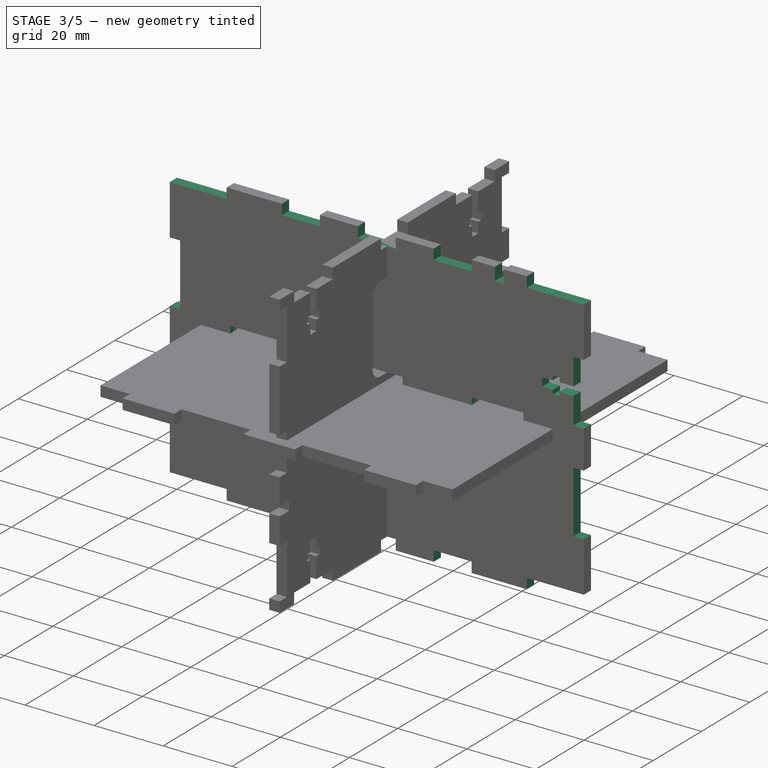
[diagram: stage 3 of 5 — iso view after this stage's code; geometry added in this stage tinted green]
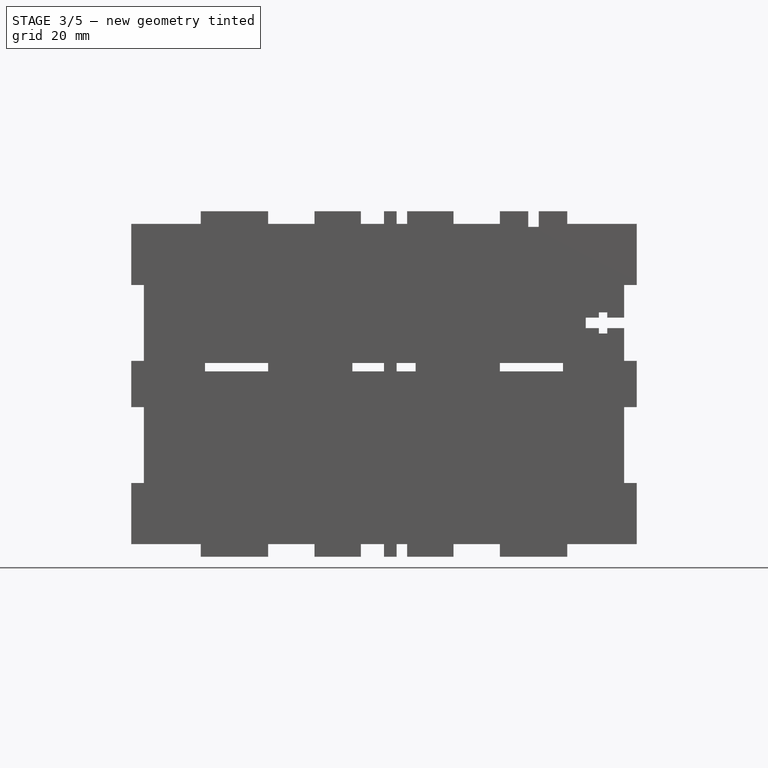
[diagram: stage 3 of 5 — front view after this stage's code; geometry added in this stage tinted green]
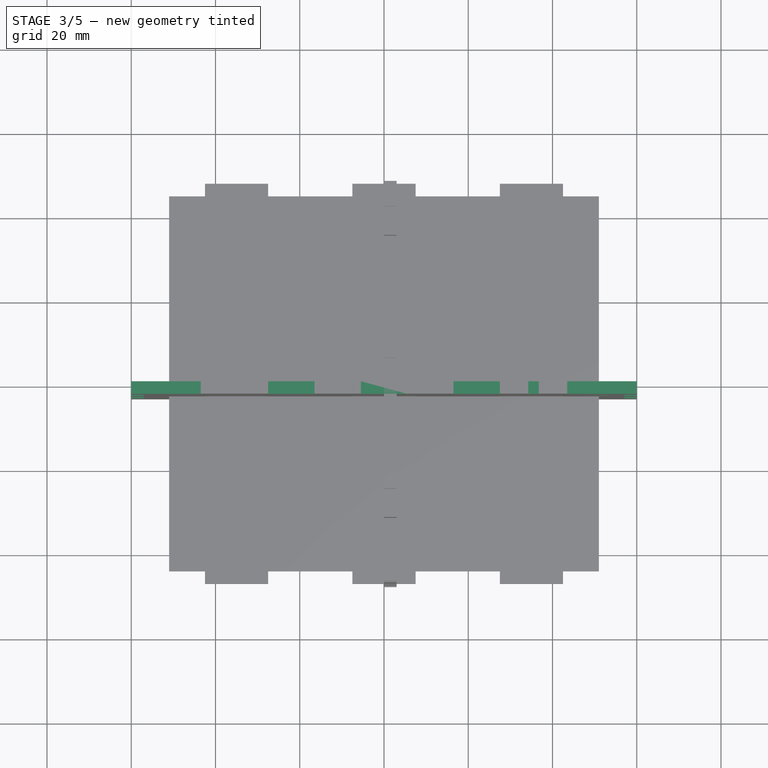
[diagram: stage 3 of 5 — top view after this stage's code; geometry added in this stage tinted green]
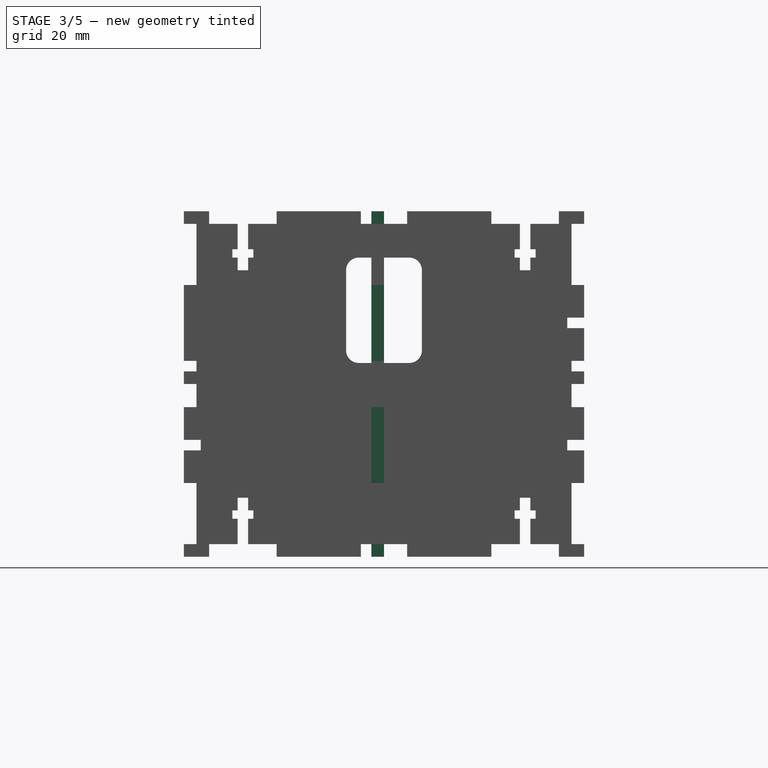
[diagram: stage 3 of 5 — right view after this stage's code; geometry added in this stage tinted green]
FEATURE [PartDesign::Pocket] Pocket006
  BaseFeature = -> Pad002
  Length = 5
  Length2 = 100
  Placement = pos=(0,0,0) rot=(1,0,0;1.5708rad)
  Profile = -> Sketch010
  Reversed = true
  Type = 1
FEATURE [PartDesign::Mirrored] Mirrored010
  MirrorPlane = -> Sketch010 [V_Axis]
  Placement = pos=(0,0,0) rot=(1,0,0;1.5708rad)
FEATURE [PartDesign::Mirrored] Mirrored011
  MirrorPlane = -> Sketch010 [H_Axis]
  Placement = pos=(0,0,0) rot=(1,0,0;1.5708rad)
FEATURE [PartDesign::MultiTransform] MultiTransform005
  BaseFeature = -> Pocket006
  Originals = -> [Pocket006]
  Placement = pos=(0,0,0) rot=(1,0,0;1.5708rad)
  Transformations = -> [Mirrored010,Mirrored011]
FEATURE [Sketcher::SketchObject] Sketch011  label="Front_Interlocking_Mid"
  MapMode = 5
  Placement = pos=(0,0,0) rot=(1,0,0;1.5708rad)
  Support = -> [XZ_Plane003]
  sketch-geometry (12):
    g0: LineSegment StartX=27.5 StartY=5 StartZ=0 EndX=42.5 EndY=5 EndZ=0
    g1: LineSegment StartX=42.5 StartY=5 StartZ=0 EndX=42.5 EndY=2 EndZ=0
    g2: LineSegment StartX=42.5 StartY=2 StartZ=0 EndX=27.5 EndY=2 EndZ=0
    g3: LineSegment StartX=27.5 StartY=2 StartZ=0 EndX=27.5 EndY=5 EndZ=0
    g4: LineSegment StartX=-7.5 StartY=5 StartZ=0 EndX=7.5 EndY=5 EndZ=0
    g5: LineSegment StartX=7.5 StartY=5 StartZ=0 EndX=7.5 EndY=2 EndZ=0
    g6: LineSegment StartX=7.5 StartY=2 StartZ=0 EndX=-7.5 EndY=2 EndZ=0
    g7: LineSegment StartX=-7.5 StartY=2 StartZ=0 EndX=-7.5 EndY=5 EndZ=0
    g8: LineSegment StartX=-42.5 StartY=5 StartZ=0 EndX=-27.5 EndY=5 EndZ=0
    g9: LineSegment StartX=-27.5 StartY=5 StartZ=0 EndX=-27.5 EndY=2 EndZ=0
    g10: LineSegment StartX=-27.5 StartY=2 StartZ=0 EndX=-42.5 EndY=2 EndZ=0
    g11: LineSegment StartX=-42.5 StartY=2 StartZ=0 EndX=-42.5 EndY=5 EndZ=0
  constraints (35):
    c: Coincident(g0,g1)
    c: Coincident(g1,g2)
    c: Coincident(g2,g3)
    c: Coincident(g3,g0)
    c: Horizontal(g0)
    c: Horizontal(g2)
    c: Vertical(g1)
    c: Vertical(g3)
    c: Coincident(g4,g5)
    c: Coincident(g5,g6)
    c: Coincident(g6,g7)
    c: Coincident(g7,g4)
    c: Horizontal(g6)
    c: Vertical(g5)
    c: Vertical(g7)
    c: Coincident(g8,g9)
    c: Coincident(g9,g10)
    c: Coincident(g10,g11)
    c: Coincident(g11,g8)
    c: Horizontal(g8)
    c: Horizontal(g10)
    c: Vertical(g9)
    c: Vertical(g11)
    c: DistanceX(g4,g4) = 15
    c: Equal(g0,g8)
    c: Equal(g8,g4)
    c: Equal(g1,g5)
    c: Equal(g5,g9)
    c: DistanceY(g1,g1) = 3
    c: Symmetric(g4,g4,g-2)
    c: DistanceX(g4,g0) = 20
    c: DistanceX(g8,g4) = 20
    c: DistanceY(g-1,g1) = 2
    c: PointOnObject(g4,g0)
    c: PointOnObject(g8,g0)
FEATURE [PartDesign::Pocket] Pocket007
  BaseFeature = -> MultiTransform005
  Length = 5
  Length2 = 100
  Placement = pos=(0,0,0) rot=(1,0,0;1.5708rad)
  Profile = -> Sketch011
  Reversed = true
  Type = 1
FEATURE [Sketcher::SketchObject] Sketch012  label="Front Hole"
  MapMode = 5
  Placement = pos=(0,0,0) rot=(1,0,0;1.5708rad)
  Support = -> [XZ_Plane003]
  sketch-geometry (8):
    g0: LineSegment StartX=-48 StartY=27 StartZ=0 EndX=8.5 EndY=27 EndZ=0
    g1: LineSegment StartX=11.5 StartY=24 StartZ=0 EndX=11.5 EndY=15 EndZ=0
    g2: LineSegment StartX=8.5 StartY=12 StartZ=0 EndX=-48 EndY=12 EndZ=0
    g3: LineSegment StartX=-51 StartY=15 StartZ=0 EndX=-51 EndY=24 EndZ=0
    g4: ArcOfCircle CenterX=-48 CenterY=24 CenterZ=0 NormalX=0 NormalY=0 NormalZ=1 AngleXU=0 Radius=3 StartAngle=1.5708 EndAngle=3.14159
    g5: ArcOfCircle CenterX=-48 CenterY=15 CenterZ=0 NormalX=0 NormalY=0 NormalZ=1 AngleXU=0 Radius=3 StartAngle=3.14159 EndAngle=4.71239
    g6: ArcOfCircle CenterX=8.5 CenterY=15 CenterZ=0 NormalX=0 NormalY=0 NormalZ=1 AngleXU=0 Radius=3 StartAngle=4.71239 EndAngle=6.28319
    g7: ArcOfCircle CenterX=8.5 CenterY=24 CenterZ=0 NormalX=0 NormalY=0 NormalZ=1 AngleXU=0 Radius=3 StartAngle=0 EndAngle=1.5708
  constraints (21):
    c: Horizontal(g0)
    c: Horizontal(g2)
    c: Vertical(g1)
    c: Vertical(g3)
    c: Tangent(g0,g4) = 1.5708
    c: Tangent(g3,g4) = 1.5708
    c: Tangent(g2,g5) = 1.5708
    c: Tangent(g3,g5) = 1.5708
    c: Tangent(g2,g6) = 1.5708
    c: Tangent(g1,g6) = 1.5708
    c: Tangent(g1,g7) = 1.5708
    c: DistanceX(g3,g1) = 62.5
    c: Coincident(g7,g0)
    c: Radius(g4) = 3
    c: Radius(g7) = 3
    c: Tangent(g7,g0,g0) = 1.5708
    c: Radius(g6) = 3
    c: Radius(g5) = 3
    c: DistanceY(g2,g0) = 15
    c: DistanceX(g3,g-1) = 51
    c: DistanceY(g-1,g2) = 12
FEATURE [PartDesign::Pocket] Pocket008
  BaseFeature = -> Pocket007
  Length = 5
  Length2 = 100
  Placement = pos=(0,0,0) rot=(1,0,0;1.5708rad)
  Profile = -> Sketch012
  Reversed = true
  Type = 1
FEATURE [PartDesign::Body] Body003  label="Front"
  Group = -> [Sketch009,Sketch010,Pad002,Pocket006,MultiTransform005,Mirrored010,Mirrored011,Sketch011,Pocket007,Sketch012,Pocket008,Sketch013,Pocket009]
  Origin = -> Origin003
  Placement = pos=(0,-44.5,0) rot=(0,0,1;0rad)
  Tip = -> Pocket009
FEATURE [Sketcher::SketchObject] Sketch014  label="Back_Base"
  MapMode = 5
  Placement = pos=(0,0,0) rot=(1,0,0;1.5708rad)
  Support = -> [XZ_Plane003]
  sketch-geometry (4):
    g0: LineSegment StartX=-60 StartY=-41 StartZ=0 EndX=60 EndY=-41 EndZ=0
    g1: LineSegment StartX=60 StartY=-41 StartZ=0 EndX=60 EndY=41 EndZ=0
    g2: LineSegment StartX=60 StartY=41 StartZ=0 EndX=-60 EndY=41 EndZ=0
    g3: LineSegment StartX=-60 StartY=41 StartZ=0 EndX=-60 EndY=-41 EndZ=0
  constraints (10):
    c: Coincident(g0,g1)
    c: Coincident(g1,g2)
    c: Coincident(g2,g3)
    c: Coincident(g3,g0)
    c: Horizontal(g0)
    c: Vertical(g3)
    c: DistanceX(g2,g2) = 120
    c: DistanceY(g1,g1) = 82
    c: Symmetric(g1,g0,g-1)
    c: Symmetric(g2,g1,g-2)
FEATURE [PartDesign::Pad] Pad003
  Length = 3
  Length2 = 100
  Placement = pos=(0,0,0) rot=(1,0,0;1.5708rad)
  Profile = -> Sketch014
  Type = 0
FEATURE [Sketcher::SketchObject] Sketch015  label="Back_Interlocking_Sides"
  ExternalGeometry = -> [Sketch009]
  MapMode = 5
  Placement = pos=(0,0,0) rot=(1,0,0;1.5708rad)
  Support = -> [XZ_Plane003]
  sketch-geometry (16):
    g0: LineSegment StartX=-60 StartY=41 StartZ=0 EndX=-43.5 EndY=41 EndZ=0
    g1: LineSegment StartX=-43.5 StartY=41 StartZ=0 EndX=-43.5 EndY=38 EndZ=0
    g2: LineSegment StartX=-43.5 StartY=38 StartZ=0 EndX=-60 EndY=38 EndZ=0
    g3: LineSegment StartX=-60 StartY=38 StartZ=0 EndX=-60 EndY=41 EndZ=0
    g4: LineSegment StartX=-27.5 StartY=41 StartZ=0 EndX=-16.5 EndY=41 EndZ=0
    g5: LineSegment StartX=-16.5 StartY=41 StartZ=0 EndX=-16.5 EndY=38 EndZ=0
    g6: LineSegment StartX=-16.5 StartY=38 StartZ=0 EndX=-27.5 EndY=38 EndZ=0
    g7: LineSegment StartX=-27.5 StartY=38 StartZ=0 EndX=-27.5 EndY=41 EndZ=0
    g8: LineSegment StartX=-5.5 StartY=41 StartZ=0 EndX=5.5 EndY=41 EndZ=0
    g9: LineSegment StartX=5.5 StartY=41 StartZ=0 EndX=5.5 EndY=38 EndZ=0
    g10: LineSegment StartX=5.5 StartY=38 StartZ=0 EndX=-5.5 EndY=38 EndZ=0
    g11: LineSegment StartX=-5.5 StartY=38 StartZ=0 EndX=-5.5 EndY=41 EndZ=0
    g12: LineSegment StartX=-60 StartY=23.5 StartZ=0 EndX=-57 EndY=23.5 EndZ=0
    g13: LineSegment StartX=-57 StartY=23.5 StartZ=0 EndX=-57 EndY=5.5 EndZ=0
    g14: LineSegment StartX=-57 StartY=5.5 StartZ=0 EndX=-60 EndY=5.5 EndZ=0
    g15: LineSegment StartX=-60 StartY=5.5 StartZ=0 EndX=-60 EndY=23.5 EndZ=0
  constraints (46):
    c: Coincident(g0,g1)
    c: Coincident(g1,g2)
    c: Coincident(g2,g3)
    c: Coincident(g3,g0)
    c: Horizontal(g0)
    c: Horizontal(g2)
    c: Vertical(g1)
    c: Vertical(g3)
    c: Coincident(g4,g5)
    c: Coincident(g5,g6)
    c: Coincident(g6,g7)
    c: Coincident(g7,g4)
    c: Horizontal(g4)
    c: Horizontal(g6)
    c: Vertical(g5)
    c: Vertical(g7)
    c: Coincident(g8,g9)
    c: Coincident(g9,g10)
    c: Coincident(g10,g11)
    c: Coincident(g11,g8)
    c: Horizontal(g10)
    c: Vertical(g9)
    c: Vertical(g11)
    c: Coincident(g0,g-4)
    c: PointOnObject(g4,g-3)
    c: PointOnObject(g8,g-3)
    c: DistanceX(g10,g10) = 11
    c: DistanceY(g9,g9) = 3
    c: Equal(g1,g5)
    c: Equal(g5,g9)
    c: Equal(g6,g10)
    c: Symmetric(g8,g8,g-2)
    c: DistanceX(g4,g8) = 11
    c: Coincident(g12,g13)
    c: Coincident(g13,g14)
    c: Coincident(g14,g15)
    c: Coincident(g15,g12)
    c: Horizontal(g12)
    c: Horizontal(g14)
    c: Vertical(g13)
    c: Vertical(g15)
    c: Equal(g12,g1)
    c: PointOnObject(g12,g-4)
    c: DistanceY(g13,g13) = 18
    c: DistanceY(g-1,g14) = 5.5
    c: DistanceX(g0,g4) = 16
FEATURE [PartDesign::Pocket] Pocket010
  BaseFeature = -> Pad003
  Length = 5
  Length2 = 100
  Placement = pos=(0,0,0) rot=(1,0,0;1.5708rad)
  Profile = -> Sketch015
  Reversed = true
  Type = 1
FEATURE [PartDesign::Mirrored] Mirrored012
  MirrorPlane = -> Sketch015 [V_Axis]
  Placement = pos=(0,0,0) rot=(1,0,0;1.5708rad)
FEATURE [PartDesign::Mirrored] Mirrored013
  MirrorPlane = -> Sketch015 [H_Axis]
  Placement = pos=(0,0,0) rot=(1,0,0;1.5708rad)
FEATURE [PartDesign::MultiTransform] MultiTransform006
  BaseFeature = -> Pocket010
  Originals = -> [Pocket010]
  Placement = pos=(0,0,0) rot=(1,0,0;1.5708rad)
  Transformations = -> [Mirrored012,Mirrored013]
FEATURE [Sketcher::SketchObject] Sketch016  label="Back_Interlocking_Mid"
  MapMode = 5
  Placement = pos=(0,0,0) rot=(1,0,0;1.5708rad)
  Support = -> [XZ_Plane003]
  sketch-geometry (12):
    g0: LineSegment StartX=27.5 StartY=5 StartZ=0 EndX=42.5 EndY=5 EndZ=0
    g1: LineSegment StartX=42.5 StartY=5 StartZ=0 EndX=42.5 EndY=2 EndZ=0
    g2: LineSegment StartX=42.5 StartY=2 StartZ=0 EndX=27.5 EndY=2 EndZ=0
    g3: LineSegment StartX=27.5 StartY=2 StartZ=0 EndX=27.5 EndY=5 EndZ=0
    g4: LineSegment StartX=-7.5 StartY=5 StartZ=0 EndX=7.5 EndY=5 EndZ=0
    g5: LineSegment StartX=7.5 StartY=5 StartZ=0 EndX=7.5 EndY=2 EndZ=0
    g6: LineSegment StartX=7.5 StartY=2 StartZ=0 EndX=-7.5 EndY=2 EndZ=0
    g7: LineSegment StartX=-7.5 StartY=2 StartZ=0 EndX=-7.5 EndY=5 EndZ=0
    g8: LineSegment StartX=-42.5 StartY=5 StartZ=0 EndX=-27.5 EndY=5 EndZ=0
    g9: LineSegment StartX=-27.5 StartY=5 StartZ=0 EndX=-27.5 EndY=2 EndZ=0
    g10: LineSegment StartX=-27.5 StartY=2 StartZ=0 EndX=-42.5 EndY=2 EndZ=0
    g11: LineSegment StartX=-42.5 StartY=2 StartZ=0 EndX=-42.5 EndY=5 EndZ=0
  constraints (35):
    c: Coincident(g0,g1)
    c: Coincident(g1,g2)
    c: Coincident(g2,g3)
    c: Coincident(g3,g0)
    c: Horizontal(g0)
    c: Horizontal(g2)
    c: Vertical(g1)
    c: Vertical(g3)
    c: Coincident(g4,g5)
    c: Coincident(g5,g6)
    c: Coincident(g6,g7)
    c: Coincident(g7,g4)
    c: Horizontal(g6)
    c: Vertical(g5)
    c: Vertical(g7)
    c: Coincident(g8,g9)
    c: Coincident(g9,g10)
    c: Coincident(g10,g11)
    c: Coincident(g11,g8)
    c: Horizontal(g8)
    c: Horizontal(g10)
    c: Vertical(g9)
    c: Vertical(g11)
    c: DistanceX(g4,g4) = 15
    c: Equal(g0,g8)
    c: Equal(g8,g4)
    c: Equal(g1,g5)
    c: Equal(g5,g9)
    c: DistanceY(g1,g1) = 3
    c: Symmetric(g4,g4,g-2)
    c: DistanceX(g4,g0) = 20
    c: DistanceX(g8,g4) = 20
    c: DistanceY(g-1,g1) = 2
    c: PointOnObject(g4,g0)
    c: PointOnObject(g8,g0)
FEATURE [PartDesign::Pocket] Pocket011
  BaseFeature = -> MultiTransform006
  Length = 5
  Length2 = 100
  Placement = pos=(0,0,0) rot=(1,0,0;1.5708rad)
  Profile = -> Sketch016
  Reversed = true
  Type = 1
FEATURE [Sketcher::SketchObject] Sketch017  label="Back_Screws"
  ExternalGeometry = -> [Pocket008]
  MapMode = 5
  Placement = pos=(0,0,0) rot=(1,0,0;1.5708rad)
  Support = -> [XZ_Plane003]
  sketch-geometry (19):
    g0: LineSegment [constr] StartX=60 StartY=23.5 StartZ=0 EndX=60 EndY=5.5 EndZ=0
    g1: LineSegment [constr] StartX=60 StartY=14.5 StartZ=0 EndX=47.9 EndY=14.5 EndZ=0
    g2: LineSegment StartX=60 StartY=15.75 StartZ=0 EndX=53 EndY=15.75 EndZ=0
    g3: LineSegment StartX=53 StartY=15.75 StartZ=0 EndX=53 EndY=17 EndZ=0
    g4: LineSegment StartX=53 StartY=17 StartZ=0 EndX=51 EndY=17 EndZ=0
    g5: LineSegment StartX=51 StartY=17 StartZ=0 EndX=51 EndY=15.75 EndZ=0
    g6: LineSegment StartX=51 StartY=15.75 StartZ=0 EndX=47.9 EndY=15.75 EndZ=0
    g7: LineSegment StartX=47.9 StartY=15.75 StartZ=0 EndX=47.9 EndY=13.25 EndZ=0
    g8: LineSegment StartX=47.9 StartY=13.25 StartZ=0 EndX=51 EndY=13.25 EndZ=0
    g9: LineSegment StartX=51 StartY=13.25 StartZ=0 EndX=51 EndY=12 EndZ=0
    g10: LineSegment StartX=51 StartY=12 StartZ=0 EndX=53 EndY=12 EndZ=0
    g11: LineSegment StartX=53 StartY=12 StartZ=0 EndX=53 EndY=13.25 EndZ=0
    g12: LineSegment StartX=53 StartY=13.25 StartZ=0 EndX=60 EndY=13.25 EndZ=0
    g13: LineSegment StartX=60 StartY=13.25 StartZ=0 EndX=60 EndY=15.75 EndZ=0
    g14: LineSegment [constr] StartX=35.5 StartY=41 StartZ=0 EndX=35.5 EndY=37.3 EndZ=0
    g15: LineSegment StartX=34.25 StartY=41 StartZ=0 EndX=36.75 EndY=41 EndZ=0
    g16: LineSegment StartX=36.75 StartY=41 StartZ=0 EndX=36.75 EndY=37.3 EndZ=0
    g17: LineSegment StartX=36.75 StartY=37.3 StartZ=0 EndX=34.25 EndY=37.3 EndZ=0
    g18: LineSegment StartX=34.25 StartY=37.3 StartZ=0 EndX=34.25 EndY=41 EndZ=0
  constraints (53):
    c: Coincident(g0,g-3)
    c: Coincident(g0,g-4)
    c: DistanceX(g1,g1) = 12.1
    c: PointOnObject(g1,g0)
    c: Symmetric(g0,g0,g1)
    c: PointOnObject(g2,g0)
    c: Horizontal(g2)
    c: Coincident(g2,g3)
    c: Coincident(g3,g4)
    c: Coincident(g4,g5)
    c: Vertical(g5)
    c: Coincident(g5,g6)
    c: Horizontal(g6)
    c: Coincident(g6,g7)
    c: Vertical(g7)
    c: Coincident(g7,g8)
    c: Coincident(g8,g9)
    c: Vertical(g9)
    c: Coincident(g9,g10)
    c: Horizontal(g10)
    c: Coincident(g10,g11)
    c: Coincident(g11,g12)
    c: Coincident(g12,g13)
    c: Coincident(g13,g2)
    c: Symmetric(g2,g12,g1)
    c: DistanceY(g13,g13) = 2.5
    c: Equal(g7,g13)
    c: Equal(g5,g3)
    c: Equal(g3,g11)
    c: Equal(g11,g9)
    c: Horizontal(g4)
    c: Vertical(g3)
    c: DistanceX(g12,g12) = 7
    c: Equal(g2,g12)
    c: DistanceY(g9,g4) = 5
    c: Symmetric(g3,g10,g1)
    c: DistanceX(g10,g10) = 2
    c: Equal(g4,g10)
    c: PointOnObject(g1,g7)
    c: PointOnObject(g14,g-5)
    c: Symmetric(g-5,g-5,g14)
    c: DistanceY(g14,g14) = 3.7
    c: Coincident(g15,g16)
    c: Coincident(g16,g17)
    c: Coincident(g17,g18)
    c: Coincident(g18,g15)
    c: Horizontal(g17)
    c: Vertical(g16)
    c: Vertical(g18)
    c: PointOnObject(g15,g-5)
    c: Symmetric(g15,g15,g14)
    c: Equal(g16,g14)
    c: DistanceX(g17,g17) = 2.5
FEATURE [PartDesign::Pocket] Pocket012
  BaseFeature = -> Pocket011
  Length = 5
  Length2 = 100
  Placement = pos=(0,0,0) rot=(1,0,0;1.5708rad)
  Profile = -> Sketch017
  Reversed = true
  Type = 1
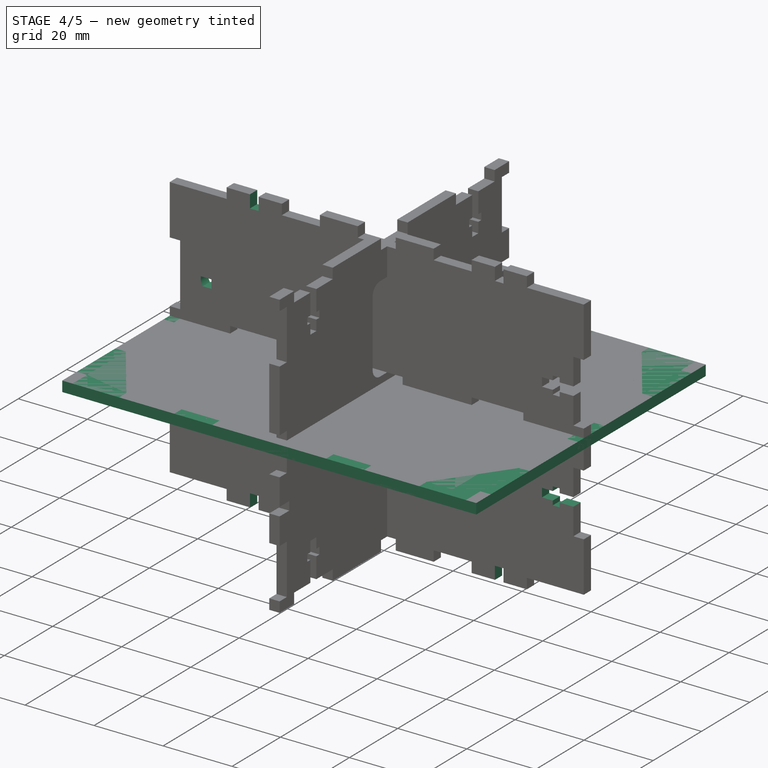
[diagram: stage 4 of 5 — iso view after this stage's code; geometry added in this stage tinted green]
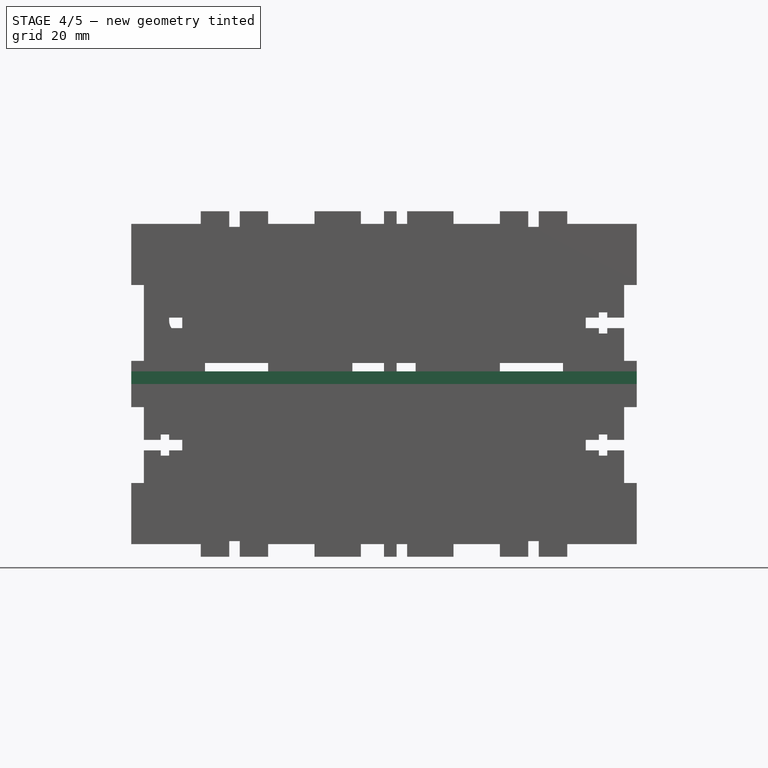
[diagram: stage 4 of 5 — front view after this stage's code; geometry added in this stage tinted green]
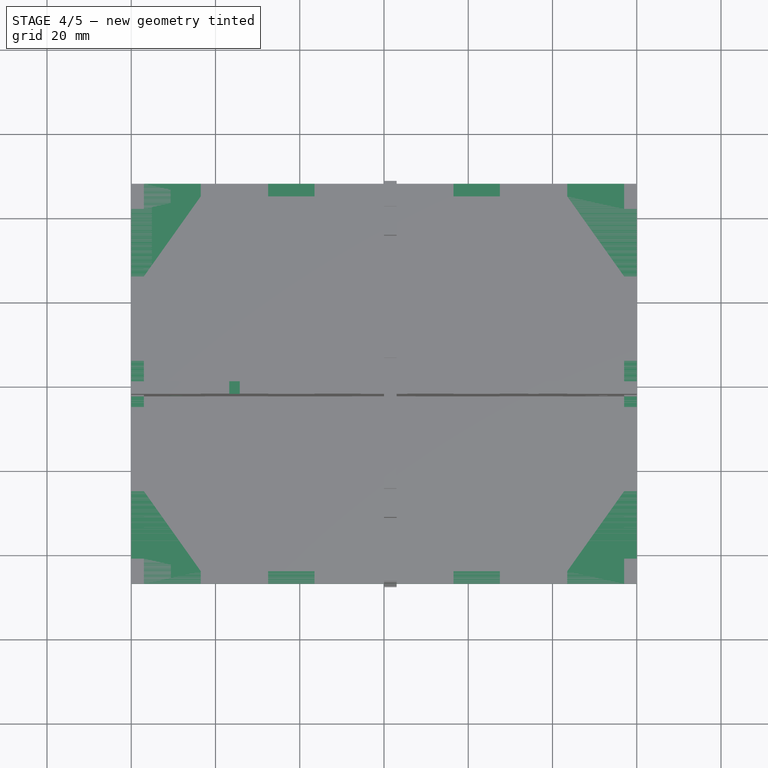
[diagram: stage 4 of 5 — top view after this stage's code; geometry added in this stage tinted green]
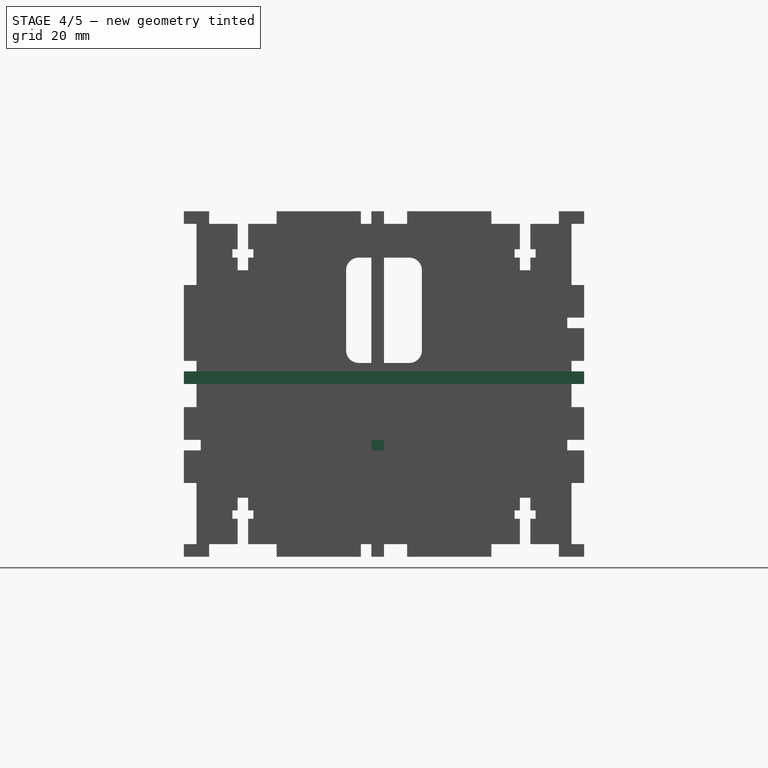
[diagram: stage 4 of 5 — right view after this stage's code; geometry added in this stage tinted green]
FEATURE [Sketcher::SketchObject] Sketch  label="Bottom_Base"
  MapMode = 5
  Support = -> [XY_Plane]
  sketch-geometry (4):
    g0: LineSegment StartX=-60 StartY=-47.5 StartZ=0 EndX=60 EndY=-47.5 EndZ=0
    g1: LineSegment StartX=60 StartY=-47.5 StartZ=0 EndX=60 EndY=47.5 EndZ=0
    g2: LineSegment StartX=60 StartY=47.5 StartZ=0 EndX=-60 EndY=47.5 EndZ=0
    g3: LineSegment StartX=-60 StartY=47.5 StartZ=0 EndX=-60 EndY=-47.5 EndZ=0
  constraints (10):
    c: Coincident(g2,g3)
    c: Coincident(g1,g2)
    c: Coincident(g0,g1)
    c: Coincident(g0,g3)
    c: Horizontal(g0)
    c: Symmetric(g1,g0,g-1)
    c: Symmetric(g1,g2,g-2)
    c: Vertical(g3)
    c: DistanceY(g3,g3) = 95
    c: DistanceX(g0,g0) = 120
FEATURE [Sketcher::SketchObject] Sketch001  label="Bottom_Interlocking"
  ExternalGeometry = -> [Sketch]
  MapMode = 5
  Support = -> [XY_Plane]
  sketch-geometry (16):
    g0: LineSegment StartX=-60 StartY=47.5 StartZ=0 EndX=-57 EndY=47.5 EndZ=0
    g1: LineSegment StartX=-57 StartY=47.5 StartZ=0 EndX=-57 EndY=41.5 EndZ=0
    g2: LineSegment StartX=-57 StartY=41.5 StartZ=0 EndX=-60 EndY=41.5 EndZ=0
    g3: LineSegment StartX=-60 StartY=41.5 StartZ=0 EndX=-60 EndY=47.5 EndZ=0
    g4: LineSegment StartX=-60 StartY=25.5 StartZ=0 EndX=-57 EndY=25.5 EndZ=0
    g5: LineSegment StartX=-57 StartY=25.5 StartZ=0 EndX=-57 EndY=5.5 EndZ=0
    g6: LineSegment StartX=-57 StartY=5.5 StartZ=0 EndX=-60 EndY=5.5 EndZ=0
    g7: LineSegment StartX=-60 StartY=5.5 StartZ=0 EndX=-60 EndY=25.5 EndZ=0
    g8: LineSegment StartX=-43.5 StartY=47.5 StartZ=0 EndX=-27.5 EndY=47.5 EndZ=0
    g9: LineSegment StartX=-27.5 StartY=47.5 StartZ=0 EndX=-27.5 EndY=44.5 EndZ=0
    g10: LineSegment StartX=-27.5 StartY=44.5 StartZ=0 EndX=-43.5 EndY=44.5 EndZ=0
    g11: LineSegment StartX=-43.5 StartY=44.5 StartZ=0 EndX=-43.5 EndY=47.5 EndZ=0
    g12: LineSegment StartX=-16.5 StartY=47.5 StartZ=0 EndX=-5.5 EndY=47.5 EndZ=0
    g13: LineSegment StartX=-5.5 StartY=47.5 StartZ=0 EndX=-5.5 EndY=44.5 EndZ=0
    g14: LineSegment StartX=-5.5 StartY=44.5 StartZ=0 EndX=-16.5 EndY=44.5 EndZ=0
    g15: LineSegment StartX=-16.5 StartY=44.5 StartZ=0 EndX=-16.5 EndY=47.5 EndZ=0
  constraints (47):
    c: Coincident(g0,g1)
    c: Coincident(g1,g2)
    c: Coincident(g2,g3)
    c: Coincident(g3,g0)
    c: Horizontal(g0)
    c: Horizontal(g2)
    c: Vertical(g1)
    c: Vertical(g3)
    c: Coincident(g0,g-4)
    c: Coincident(g4,g5)
    c: Coincident(g5,g6)
    c: Coincident(g6,g7)
    c: Coincident(g7,g4)
    c: Horizontal(g4)
    c: Horizontal(g6)
    c: Vertical(g5)
    c: Vertical(g7)
    c: PointOnObject(g4,g-4)
    c: DistanceX(g2,g2) = 3
    c: DistanceY(g-1,g5) = 5.5
    c: Equal(g4,g2)
    c: DistanceY(g7,g7) = 20
    c: Coincident(g8,g9)
    c: Coincident(g9,g10)
    c: Coincident(g10,g11)
    c: Coincident(g11,g8)
    c: Horizontal(g8)
    c: Horizontal(g10)
    c: Vertical(g9)
    c: Vertical(g11)
    c: Coincident(g12,g13)
    c: Coincident(g13,g14)
    c: Coincident(g14,g15)
    c: Coincident(g15,g12)
    c: Horizontal(g12)
    c: Horizontal(g14)
    c: Vertical(g13)
    c: Vertical(g15)
    c: PointOnObject(g12,g-3)
    c: PointOnObject(g8,g-3)
    c: DistanceX(g13,g-1) = 5.5
    c: DistanceX(g14,g14) = 11
    c: DistanceX(g9,g14) = 11
    c: DistanceX(g10,g10) = 16
    c: Equal(g11,g15)
    c: Equal(g15,g2)
    c: DistanceY(g4,g2) = 16
FEATURE [PartDesign::Pad] Pad
  Length = 3
  Length2 = 100
  Profile = -> Sketch
  Type = 0
FEATURE [PartDesign::Pocket] Pocket
  BaseFeature = -> Pad
  Length = 5
  Length2 = 100
  Midplane = true
  Profile = -> Sketch001
  Type = 1
FEATURE [PartDesign::Mirrored] Mirrored
  MirrorPlane = -> Sketch001 [V_Axis]
FEATURE [PartDesign::Mirrored] Mirrored001
  MirrorPlane = -> Sketch001 [H_Axis]
FEATURE [PartDesign::MultiTransform] MultiTransform
  BaseFeature = -> Pocket
  Originals = -> [Pocket]
  Transformations = -> [Mirrored,Mirrored001]
FEATURE [PartDesign::Body] Body  label="Bottom"
  Group = -> [Sketch,Sketch001,Pad,Pocket,MultiTransform,Mirrored,Mirrored001,Sketch002,Pocket001,MultiTransform001,Mirrored002,Mirrored003,Sketch003,Pocket002,MultiTransform002,LinearPattern,LinearPattern001,Mirrored004,Mirrored005]
  Origin = -> Origin
  Placement = pos=(0,0,-41) rot=(0,0,1;0rad)
  Tip = -> MultiTransform002
FEATURE [Sketcher::SketchObject] Sketch004  label="Top_Base001"
  MapMode = 5
  Support = -> [XY_Plane]
  sketch-geometry (4):
    g0: LineSegment StartX=-60 StartY=-47.5 StartZ=0 EndX=60 EndY=-47.5 EndZ=0
    g1: LineSegment StartX=60 StartY=-47.5 StartZ=0 EndX=60 EndY=47.5 EndZ=0
    g2: LineSegment StartX=60 StartY=47.5 StartZ=0 EndX=-60 EndY=47.5 EndZ=0
    g3: LineSegment StartX=-60 StartY=47.5 StartZ=0 EndX=-60 EndY=-47.5 EndZ=0
  constraints (10):
    c: Coincident(g2,g3)
    c: Coincident(g1,g2)
    c: Coincident(g0,g1)
    c: Coincident(g0,g3)
    c: Horizontal(g0)
    c: Symmetric(g1,g0,g-1)
    c: Symmetric(g1,g2,g-2)
    c: Vertical(g3)
    c: DistanceY(g3,g3) = 95
    c: DistanceX(g0,g0) = 120
FEATURE [PartDesign::Pad] Pad001
  Length = 3
  Length2 = 100
  Profile = -> Sketch004
  Type = 0
FEATURE [Sketcher::SketchObject] Sketch013  label="Front_Screws"
  ExternalGeometry = -> [Pocket008]
  MapMode = 5
  Placement = pos=(0,0,0) rot=(1,0,0;1.5708rad)
  Support = -> [XZ_Plane003]
  sketch-geometry (55):
    g0: LineSegment [constr] StartX=60 StartY=23.5 StartZ=0 EndX=60 EndY=5.5 EndZ=0
    g1: LineSegment [constr] StartX=60 StartY=14.5 StartZ=0 EndX=47.9 EndY=14.5 EndZ=0
    g2: LineSegment StartX=60 StartY=15.75 StartZ=0 EndX=53 EndY=15.75 EndZ=0
    g3: LineSegment StartX=53 StartY=15.75 StartZ=0 EndX=53 EndY=17 EndZ=0
    g4: LineSegment StartX=53 StartY=17 StartZ=0 EndX=51 EndY=17 EndZ=0
    g5: LineSegment StartX=51 StartY=17 StartZ=0 EndX=51 EndY=15.75 EndZ=0
    g6: LineSegment StartX=51 StartY=15.75 StartZ=0 EndX=47.9 EndY=15.75 EndZ=0
    g7: LineSegment StartX=47.9 StartY=15.75 StartZ=0 EndX=47.9 EndY=13.25 EndZ=0
    g8: LineSegment StartX=47.9 StartY=13.25 StartZ=0 EndX=51 EndY=13.25 EndZ=0
    g9: LineSegment StartX=51 StartY=13.25 StartZ=0 EndX=51 EndY=12 EndZ=0
    g10: LineSegment StartX=51 StartY=12 StartZ=0 EndX=53 EndY=12 EndZ=0
    g11: LineSegment StartX=53 StartY=12 StartZ=0 EndX=53 EndY=13.25 EndZ=0
    g12: LineSegment StartX=53 StartY=13.25 StartZ=0 EndX=60 EndY=13.25 EndZ=0
    g13: LineSegment StartX=60 StartY=13.25 StartZ=0 EndX=60 EndY=15.75 EndZ=0
    g14: LineSegment [constr] StartX=35.5 StartY=41 StartZ=0 EndX=35.5 EndY=37 EndZ=0
    g15: LineSegment StartX=34.25 StartY=41 StartZ=0 EndX=36.75 EndY=41 EndZ=0
    g16: LineSegment StartX=36.75 StartY=41 StartZ=0 EndX=36.75 EndY=37 EndZ=0
    g17: LineSegment StartX=36.75 StartY=37 StartZ=0 EndX=34.25 EndY=37 EndZ=0
    g18: LineSegment StartX=34.25 StartY=37 StartZ=0 EndX=34.25 EndY=41 EndZ=0
    g19: LineSegment StartX=-34.25 StartY=41 StartZ=0 EndX=-36.75 EndY=41 EndZ=0
    g20: LineSegment StartX=-36.75 StartY=41 StartZ=0 EndX=-36.75 EndY=37 EndZ=0
    g21: LineSegment StartX=-36.75 StartY=37 StartZ=0 EndX=-34.25 EndY=37 EndZ=0
    g22: LineSegment StartX=-34.25 StartY=37 StartZ=0 EndX=-34.25 EndY=41 EndZ=0
    g23: LineSegment StartX=34.25 StartY=-41 StartZ=0 EndX=36.75 EndY=-41 EndZ=0
    g24: LineSegment StartX=36.75 StartY=-41 StartZ=0 EndX=36.75 EndY=-37 EndZ=0
    g25: LineSegment StartX=36.75 StartY=-37 StartZ=0 EndX=34.25 EndY=-37 EndZ=0
    g26: LineSegment StartX=34.25 StartY=-37 StartZ=0 EndX=34.25 EndY=-41 EndZ=0
    g27: LineSegment StartX=-34.25 StartY=-41 StartZ=0 EndX=-36.75 EndY=-41 EndZ=0
    g28: LineSegment StartX=-36.75 StartY=-41 StartZ=0 EndX=-36.75 EndY=-37 EndZ=0
    g29: LineSegment StartX=-36.75 StartY=-37 StartZ=0 EndX=-34.25 EndY=-37 EndZ=0
    g30: LineSegment StartX=-34.25 StartY=-37 StartZ=0 EndX=-34.25 EndY=-41 EndZ=0
    g31: LineSegment StartX=60 StartY=-15.75 StartZ=0 EndX=53 EndY=-15.75 EndZ=0
    g32: LineSegment StartX=53 StartY=-15.75 StartZ=0 EndX=53 EndY=-17 EndZ=0
    g33: LineSegment StartX=53 StartY=-17 StartZ=0 EndX=51 EndY=-17 EndZ=0
    g34: LineSegment StartX=51 StartY=-17 StartZ=0 EndX=51 EndY=-15.75 EndZ=0
    g35: LineSegment StartX=51 StartY=-15.75 StartZ=0 EndX=47.9 EndY=-15.75 EndZ=0
    g36: LineSegment StartX=47.9 StartY=-15.75 StartZ=0 EndX=47.9 EndY=-13.25 EndZ=0
    g37: LineSegment StartX=47.9 StartY=-13.25 StartZ=0 EndX=51 EndY=-13.25 EndZ=0
    g38: LineSegment StartX=51 StartY=-13.25 StartZ=0 EndX=51 EndY=-12 EndZ=0
    g39: LineSegment StartX=51 StartY=-12 StartZ=0 EndX=53 EndY=-12 EndZ=0
    g40: LineSegment StartX=53 StartY=-12 StartZ=0 EndX=53 EndY=-13.25 EndZ=0
    g41: LineSegment StartX=53 StartY=-13.25 StartZ=0 EndX=60 EndY=-13.25 EndZ=0
    g42: LineSegment StartX=60 StartY=-13.25 StartZ=0 EndX=60 EndY=-15.75 EndZ=0
    g43: LineSegment StartX=-60 StartY=-15.75 StartZ=0 EndX=-53 EndY=-15.75 EndZ=0
    g44: LineSegment StartX=-53 StartY=-15.75 StartZ=0 EndX=-53 EndY=-17 EndZ=0
    g45: LineSegment StartX=-53 StartY=-17 StartZ=0 EndX=-51 EndY=-17 EndZ=0
    g46: LineSegment StartX=-51 StartY=-17 StartZ=0 EndX=-51 EndY=-15.75 EndZ=0
    g47: LineSegment StartX=-51 StartY=-15.75 StartZ=0 EndX=-47.9 EndY=-15.75 EndZ=0
    g48: LineSegment StartX=-47.9 StartY=-15.75 StartZ=0 EndX=-47.9 EndY=-13.25 EndZ=0
    g49: LineSegment StartX=-47.9 StartY=-13.25 StartZ=0 EndX=-51 EndY=-13.25 EndZ=0
    g50: LineSegment StartX=-51 StartY=-13.25 StartZ=0 EndX=-51 EndY=-12 EndZ=0
    g51: LineSegment StartX=-51 StartY=-12 StartZ=0 EndX=-53 EndY=-12 EndZ=0
    g52: LineSegment StartX=-53 StartY=-12 StartZ=0 EndX=-53 EndY=-13.25 EndZ=0
    g53: LineSegment StartX=-53 StartY=-13.25 StartZ=0 EndX=-60 EndY=-13.25 EndZ=0
    g54: LineSegment StartX=-60 StartY=-13.25 StartZ=0 EndX=-60 EndY=-15.75 EndZ=0
  constraints (157):
    c: Coincident(g0,g-3)
    c: Coincident(g0,g-4)
    c: DistanceX(g1,g1) = 12.1
    c: PointOnObject(g1,g0)
    c: Symmetric(g0,g0,g1)
    c: PointOnObject(g2,g0)
    c: Horizontal(g2)
    c: Coincident(g2,g3)
    c: Coincident(g3,g4)
    c: Coincident(g4,g5)
    c: Vertical(g5)
    c: Coincident(g5,g6)
    c: Horizontal(g6)
    c: Coincident(g6,g7)
    c: Vertical(g7)
    c: Coincident(g7,g8)
    c: Coincident(g8,g9)
    c: Vertical(g9)
    c: Coincident(g9,g10)
    c: Horizontal(g10)
    c: Coincident(g10,g11)
    c: Coincident(g11,g12)
    c: Coincident(g12,g13)
    c: Coincident(g13,g2)
    c: Symmetric(g2,g12,g1)
    c: DistanceY(g13,g13) = 2.5
    c: Equal(g7,g13)
    c: Equal(g5,g3)
    c: Equal(g3,g11)
    c: Equal(g11,g9)
    c: Horizontal(g4)
    c: Vertical(g3)
    c: DistanceX(g12,g12) = 7
    c: Equal(g2,g12)
    c: DistanceY(g9,g4) = 5
    c: Symmetric(g3,g10,g1)
    c: DistanceX(g10,g10) = 2
    c: Equal(g4,g10)
    c: PointOnObject(g1,g7)
    c: PointOnObject(g14,g-5)
    c: Symmetric(g-5,g-5,g14)
    c: DistanceY(g14,g14) = 4
    c: Coincident(g15,g16)
    c: Coincident(g16,g17)
    c: Coincident(g17,g18)
    c: Coincident(g18,g15)
    c: Horizontal(g17)
    c: Vertical(g16)
    c: Vertical(g18)
    c: PointOnObject(g15,g-5)
    c: Symmetric(g15,g15,g14)
    c: Equal(g16,g14)
    c: DistanceX(g17,g17) = 2.5
    c: Coincident(g19,g20)
    c: Coincident(g20,g21)
    c: Coincident(g21,g22)
    c: Coincident(g22,g19)
    c: Vertical(g20)
    c: Vertical(g22)
    c: Equal(g21,g17)
    c: Coincident(g23,g24)
    c: Coincident(g24,g25)
    c: Coincident(g25,g26)
    c: Coincident(g26,g23)
    c: Horizontal(g25)
    c: Vertical(g24)
    c: Vertical(g26)
    c: Equal(g25,g17)
    c: Horizontal(g23)
    c: Symmetric(g23,g15,g-1)
    c: Equal(g24,g16)
    c: Coincident(g27,g28)
    c: Coincident(g28,g29)
    c: Coincident(g29,g30)
    c: Coincident(g30,g27)
    c: Horizontal(g29)
    c: Vertical(g28)
    c: Vertical(g30)
    c: Horizontal(g27)
    c: Symmetric(g27,g23,g-2)
    c: Equal(g28,g26)
    c: Equal(g29,g25)
    c: Symmetric(g19,g15,g-2)
    c: Equal(g21,g17)
    c: Equal(g20,g18)
    c: Horizontal(g19)
    c: Horizontal(g21)
    c: Horizontal(g31)
    c: Coincident(g31,g32)
    c: Coincident(g32,g33)
    c: Coincident(g33,g34)
    c: Vertical(g34)
    c: Coincident(g34,g35)
    c: Horizontal(g35)
    c: Coincident(g35,g36)
    c: Vertical(g36)
    c: Coincident(g36,g37)
    c: Coincident(g37,g38)
    c: Vertical(g38)
    c: Coincident(g38,g39)
    c: Horizontal(g39)
    c: Coincident(g39,g40)
    c: Coincident(g40,g41)
    c: Coincident(g41,g42)
    c: Coincident(g42,g31)
    c: Equal(g36,g42)
    c: Equal(g34,g32)
    c: Equal(g32,g40)
    c: Equal(g40,g38)
    c: Horizontal(g33)
    c: Vertical(g32)
    c: Equal(g31,g41)
    c: Equal(g33,g39)
    c: Symmetric(g41,g12,g-1)
    c: Horizontal(g41)
    c: Vertical(g40)
    c: Equal(g41,g12)
    c: Vertical(g42)
    c: Equal(g13,g42)
    c: Equal(g40,g11)
    c: Equal(g39,g10)
    c: Equal(g37,g8)
    c: Horizontal(g43)
    c: Coincident(g43,g44)
    c: Coincident(g44,g45)
    c: Coincident(g45,g46)
    c: Vertical(g46)
    c: Coincident(g46,g47)
    c: Horizontal(g47)
    c: Coincident(g47,g48)
    c: Vertical(g48)
    c: Coincident(g48,g49)
    c: Coincident(g49,g50)
    c: Vertical(g50)
    c: Coincident(g50,g51)
    c: Horizontal(g51)
    c: Coincident(g51,g52)
    c: Coincident(g52,g53)
    c: Coincident(g53,g54)
    c: Coincident(g54,g43)
    c: Equal(g48,g54)
    c: Equal(g46,g44)
    c: Equal(g44,g52)
    c: Equal(g52,g50)
    c: Horizontal(g45)
    c: Vertical(g44)
    c: Equal(g43,g53)
    c: Equal(g45,g51)
    c: Horizontal(g53)
    c: Vertical(g52)
    c: Vertical(g54)
    c: Equal(g41,g53)
    c: Equal(g52,g40)
    c: Equal(g39,g51)
    c: Equal(g49,g37)
    c: Equal(g54,g42)
    c: Symmetric(g43,g31,g-2)
FEATURE [PartDesign::Pocket] Pocket009
  BaseFeature = -> Pocket008
  Length = 5
  Length2 = 100
  Placement = pos=(0,0,0) rot=(1,0,0;1.5708rad)
  Profile = -> Sketch013
  Reversed = true
  Type = 1
FEATURE [PartDesign::Mirrored] Mirrored014
  MirrorPlane = -> Sketch017 [V_Axis]
  Placement = pos=(0,0,0) rot=(1,0,0;1.5708rad)
FEATURE [PartDesign::Mirrored] Mirrored015
  MirrorPlane = -> Sketch017 [H_Axis]
  Placement = pos=(0,0,0) rot=(1,0,0;1.5708rad)
FEATURE [PartDesign::MultiTransform] MultiTransform007
  BaseFeature = -> Pocket012
  Originals = -> [Pocket012]
  Placement = pos=(0,0,0) rot=(1,0,0;1.5708rad)
  Transformations = -> [Mirrored014,Mirrored015]
FEATURE [Sketcher::SketchObject] Sketch018
  MapMode = 5
  Placement = pos=(0,0,0) rot=(1,0,0;1.5708rad)
  Support = -> [XZ_Plane004]
  sketch-geometry (1):
    g0: Circle CenterX=0 CenterY=-5 CenterZ=0 NormalX=0 NormalY=0 NormalZ=1 AngleXU=0 Radius=1.75
  constraints (3):
    c: PointOnObject(g0,g-2)
    c: Radius(g0) = 1.75
    c: DistanceY(g0,g-1) = 5
FEATURE [PartDesign::Pocket] Pocket013
  BaseFeature = -> MultiTransform007
  Length = 5
  Length2 = 100
  Placement = pos=(0,0,0) rot=(1,0,0;1.5708rad)
  Profile = -> Sketch018
  Reversed = true
  Type = 1
FEATURE [PartDesign::LinearPattern] LinearPattern002
  Direction = -> Sketch018 [H_Axis]
  Length = 40
  Occurrences = 9
  Placement = pos=(0,0,0) rot=(1,0,0;1.5708rad)
FEATURE [PartDesign::LinearPattern] LinearPattern003
  Direction = -> Sketch018 [V_Axis]
  Length = 25
  Occurrences = 6
  Placement = pos=(0,0,0) rot=(1,0,0;1.5708rad)
  Reversed = true
FEATURE [PartDesign::Mirrored] Mirrored016
  MirrorPlane = -> Sketch018 [V_Axis]
  Placement = pos=(0,0,0) rot=(1,0,0;1.5708rad)
FEATURE [PartDesign::MultiTransform] MultiTransform008
  BaseFeature = -> Pocket013
  Originals = -> [Pocket013]
  Placement = pos=(0,0,0) rot=(1,0,0;1.5708rad)
  Transformations = -> [LinearPattern002,LinearPattern003,Mirrored016]
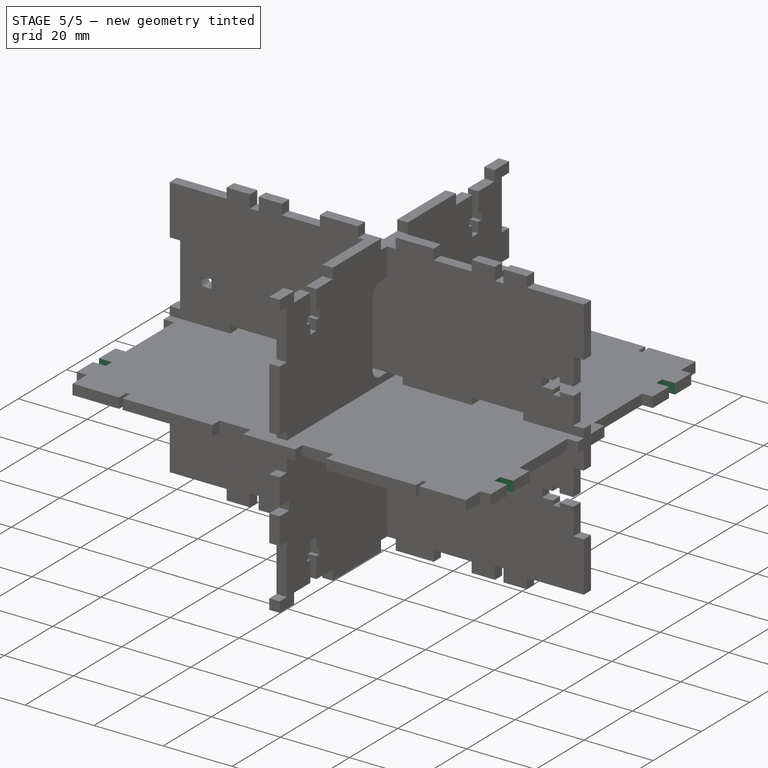
[diagram: stage 5 of 5 — iso view after this stage's code; geometry added in this stage tinted green]
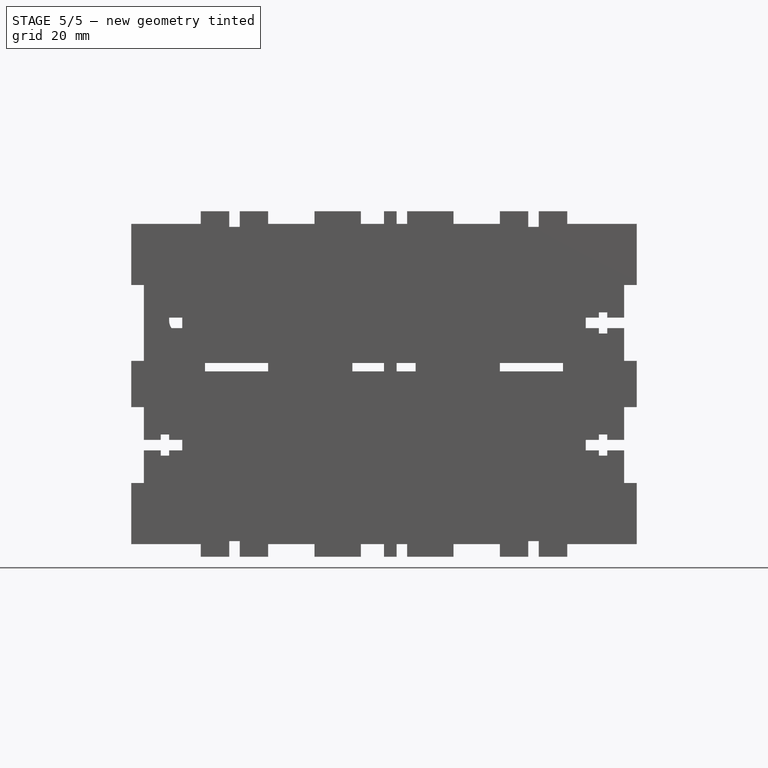
[diagram: stage 5 of 5 — front view after this stage's code; geometry added in this stage tinted green]
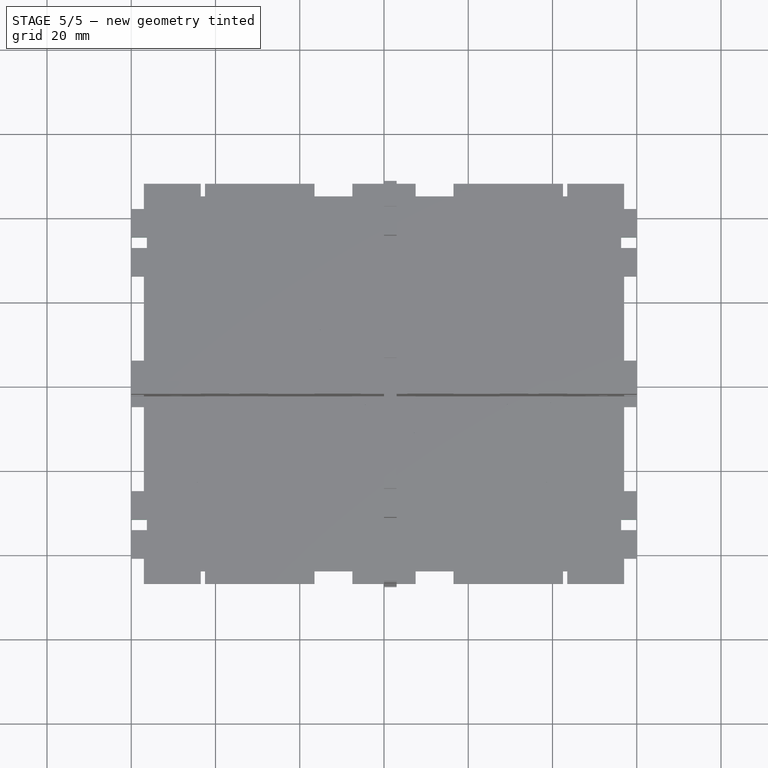
[diagram: stage 5 of 5 — top view after this stage's code; geometry added in this stage tinted green]
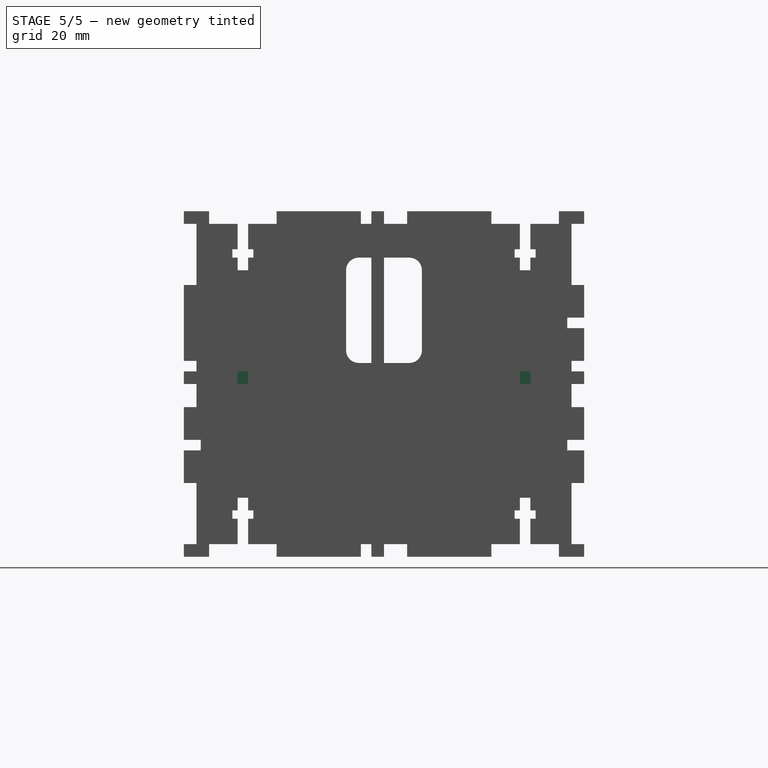
[diagram: stage 5 of 5 — right view after this stage's code; geometry added in this stage tinted green]
FEATURE [Sketcher::SketchObject] Sketch002  label="Screws"
  ExternalGeometry = -> [MultiTransform]
  MapMode = 5
  Support = -> [XY_Plane]
  sketch-geometry (31):
    g0: LineSegment StartX=-60 StartY=34.85 StartZ=0 EndX=-56.3 EndY=34.85 EndZ=0
    g1: LineSegment StartX=-56.3 StartY=34.85 StartZ=0 EndX=-56.3 EndY=32.15 EndZ=0
    g2: LineSegment StartX=-56.3 StartY=32.15 StartZ=0 EndX=-60 EndY=32.15 EndZ=0
    g3: LineSegment StartX=-60 StartY=32.15 StartZ=0 EndX=-60 EndY=34.85 EndZ=0
    g4: LineSegment [constr] StartX=-60 StartY=33.5 StartZ=0 EndX=-56.3 EndY=33.5 EndZ=0
    g5: LineSegment [constr] StartX=-43.5 StartY=47.5 StartZ=0 EndX=-27.5 EndY=47.5 EndZ=0
    g6: LineSegment [constr] StartX=-35.5 StartY=47.5 StartZ=0 EndX=-35.5 EndY=35.4 EndZ=0
    g7: LineSegment StartX=-36.75 StartY=47.5 StartZ=0 EndX=-34.25 EndY=47.5 EndZ=0
    g8: LineSegment StartX=-34.25 StartY=35.4 StartZ=0 EndX=-36.75 EndY=35.4 EndZ=0
    g9: LineSegment StartX=-34.25 StartY=47.5 StartZ=0 EndX=-34.25 EndY=40.4 EndZ=0
    g10: LineSegment StartX=-34.25 StartY=40.4 StartZ=0 EndX=-33 EndY=40.4 EndZ=0
    g11: LineSegment StartX=-33 StartY=40.4 StartZ=0 EndX=-33 EndY=38.4 EndZ=0
    g12: LineSegment StartX=-33 StartY=38.4 StartZ=0 EndX=-34.25 EndY=38.4 EndZ=0
    g13: LineSegment StartX=-34.25 StartY=38.4 StartZ=0 EndX=-34.25 EndY=35.4 EndZ=0
    g14: LineSegment StartX=-36.75 StartY=47.5 StartZ=0 EndX=-36.75 EndY=40.4 EndZ=0
    g15: LineSegment StartX=-36.75 StartY=40.4 StartZ=0 EndX=-38 EndY=40.4 EndZ=0
    g16: LineSegment StartX=-38 StartY=40.4 StartZ=0 EndX=-38 EndY=38.4 EndZ=0
    g17: LineSegment StartX=-38 StartY=38.4 StartZ=0 EndX=-36.75 EndY=38.4 EndZ=0
    g18: LineSegment StartX=-36.75 StartY=38.4 StartZ=0 EndX=-36.75 EndY=35.4 EndZ=0
    g19: LineSegment StartX=56.3 StartY=34.85 StartZ=0 EndX=60 EndY=34.85 EndZ=0
    g20: LineSegment StartX=60 StartY=34.85 StartZ=0 EndX=60 EndY=32.15 EndZ=0
    g21: LineSegment StartX=60 StartY=32.15 StartZ=0 EndX=56.3 EndY=32.15 EndZ=0
    g22: LineSegment StartX=56.3 StartY=32.15 StartZ=0 EndX=56.3 EndY=34.85 EndZ=0
    g23: LineSegment StartX=-60 StartY=-32.15 StartZ=0 EndX=-56.3 EndY=-32.15 EndZ=0
    g24: LineSegment StartX=-56.3 StartY=-32.15 StartZ=0 EndX=-56.3 EndY=-34.85 EndZ=0
    g25: LineSegment StartX=-56.3 StartY=-34.85 StartZ=0 EndX=-60 EndY=-34.85 EndZ=0
    g26: LineSegment StartX=-60 StartY=-34.85 StartZ=0 EndX=-60 EndY=-32.15 EndZ=0
    g27: LineSegment StartX=56.3 StartY=-32.15 StartZ=0 EndX=60 EndY=-32.15 EndZ=0
    g28: LineSegment StartX=60 StartY=-32.15 StartZ=0 EndX=60 EndY=-34.85 EndZ=0
    g29: LineSegment StartX=60 StartY=-34.85 StartZ=0 EndX=56.3 EndY=-34.85 EndZ=0
    g30: LineSegment StartX=56.3 StartY=-34.85 StartZ=0 EndX=56.3 EndY=-32.15 EndZ=0
  constraints (87):
    c: Coincident(g0,g1)
    c: Coincident(g1,g2)
    c: Coincident(g2,g3)
    c: Coincident(g3,g0)
    c: Horizontal(g0)
    c: Horizontal(g2)
    c: Vertical(g1)
    c: PointOnObject(g0,g-3)
    c: DistanceX(g0,g0) = 3.7
    c: DistanceY(g1,g1) = 2.7
    c: Symmetric(g-3,g-3,g4)
    c: Symmetric(g0,g2,g4)
    c: PointOnObject(g4,g-3)
    c: Equal(g0,g4)
    c: Coincident(g5,g-5)
    c: Coincident(g5,g-4)
    c: Symmetric(g5,g5,g6)
    c: PointOnObject(g6,g5)
    c: DistanceY(g6,g6) = 12.1
    c: Horizontal(g8)
    c: PointOnObject(g7,g5)
    c: Symmetric(g7,g7,g6)
    c: DistanceX(g8,g8) = 2.5
    c: Coincident(g7,g9)
    c: Vertical(g9)
    c: Coincident(g9,g10)
    c: Horizontal(g10)
    c: Coincident(g10,g11)
    c: Vertical(g11)
    c: Coincident(g11,g12)
    c: Horizontal(g12)
    c: Coincident(g12,g13)
    c: Coincident(g13,g8)
    c: PointOnObject(g12,g9)
    c: PointOnObject(g8,g9)
    c: Equal(g7,g8)
    c: Coincident(g7,g14)
    c: Vertical(g14)
    c: Coincident(g14,g15)
    c: Horizontal(g15)
    c: Coincident(g15,g16)
    c: Vertical(g16)
    c: Coincident(g16,g17)
    c: Horizontal(g17)
    c: Coincident(g17,g18)
    c: Coincident(g18,g8)
    c: Vertical(g18)
    c: Equal(g14,g9)
    c: Equal(g16,g11)
    c: Equal(g10,g15)
    c: DistanceX(g16,g11) = 5
    c: DistanceY(g13,g13) = 3
    c: DistanceY(g11,g11) = 2
    c: PointOnObject(g6,g8)
    c: Coincident(g19,g20)
    c: Coincident(g20,g21)
    c: Coincident(g21,g22)
    c: Coincident(g22,g19)
    c: Horizontal(g19)
    c: Horizontal(g21)
    c: Vertical(g20)
    c: Vertical(g22)
    c: Coincident(g23,g24)
    c: Coincident(g24,g25)
    c: Coincident(g25,g26)
    c: Coincident(g26,g23)
    c: Horizontal(g23)
    c: Horizontal(g25)
    c: Vertical(g24)
    c: Vertical(g26)
    c: Coincident(g27,g28)
    c: Coincident(g28,g29)
    c: Coincident(g29,g30)
    c: Coincident(g30,g27)
    c: Horizontal(g27)
    c: Horizontal(g29)
    c: Vertical(g28)
    c: Vertical(g30)
    c: Equal(g20,g1)
    c: Equal(g1,g28)
    c: Equal(g28,g24)
    c: Equal(g21,g27)
    c: Equal(g27,g23)
    c: Equal(g23,g2)
    c: Symmetric(g19,g0,g-2)
    c: Symmetric(g25,g0,g-1)
    c: Symmetric(g28,g19,g-1)
FEATURE [PartDesign::Pocket] Pocket001  label="Pocket Screws"
  BaseFeature = -> MultiTransform
  Length = 5
  Length2 = 100
  Profile = -> Sketch002
  Reversed = true
  Type = 1
FEATURE [PartDesign::Mirrored] Mirrored002
  MirrorPlane = -> Sketch002 [V_Axis]
FEATURE [PartDesign::Mirrored] Mirrored003
  MirrorPlane = -> Sketch002 [H_Axis]
FEATURE [PartDesign::MultiTransform] MultiTransform001
  BaseFeature = -> Pocket001
  Originals = -> [Pocket001]
  Transformations = -> [Mirrored002,Mirrored003]
FEATURE [Sketcher::SketchObject] Sketch003  label="Bottom Holes"
  MapMode = 5
  Support = -> [XY_Plane]
  sketch-geometry (1):
    g0: Circle CenterX=0 CenterY=0 CenterZ=0 NormalX=0 NormalY=0 NormalZ=1 AngleXU=0 Radius=1.75
  constraints (2):
    c: Radius(g0) = 1.75
    c: Coincident(g0,g-1)
FEATURE [PartDesign::Pocket] Pocket002  label="Pocket Holes"
  BaseFeature = -> MultiTransform001
  Length = 5
  Length2 = 100
  Profile = -> Sketch003
  Reversed = true
  Type = 1
FEATURE [PartDesign::LinearPattern] LinearPattern
  Direction = -> Sketch003 [H_Axis]
  Length = 45
  Occurrences = 9
FEATURE [PartDesign::LinearPattern] LinearPattern001
  Direction = -> Sketch003 [V_Axis]
  Length = 25
  Occurrences = 5
FEATURE [PartDesign::Mirrored] Mirrored004
  MirrorPlane = -> Sketch003 [V_Axis]
FEATURE [PartDesign::Mirrored] Mirrored005
  MirrorPlane = -> Sketch003 [H_Axis]
FEATURE [PartDesign::MultiTransform] MultiTransform002
  BaseFeature = -> Pocket002
  Originals = -> [Pocket002]
  Transformations = -> [LinearPattern,LinearPattern001,Mirrored004,Mirrored005]
FEATURE [Sketcher::SketchObject] Sketch005  label="Top_Interlocking"
  ExternalGeometry = -> [Sketch]
  MapMode = 5
  Support = -> [XY_Plane]
  sketch-geometry (16):
    g0: LineSegment StartX=-60 StartY=47.5 StartZ=0 EndX=-57 EndY=47.5 EndZ=0
    g1: LineSegment StartX=-57 StartY=47.5 StartZ=0 EndX=-57 EndY=41.5 EndZ=0
    g2: LineSegment StartX=-57 StartY=41.5 StartZ=0 EndX=-60 EndY=41.5 EndZ=0
    g3: LineSegment StartX=-60 StartY=41.5 StartZ=0 EndX=-60 EndY=47.5 EndZ=0
    g4: LineSegment StartX=-60 StartY=25.5 StartZ=0 EndX=-57 EndY=25.5 EndZ=0
    g5: LineSegment StartX=-57 StartY=25.5 StartZ=0 EndX=-57 EndY=5.5 EndZ=0
    g6: LineSegment StartX=-57 StartY=5.5 StartZ=0 EndX=-60 EndY=5.5 EndZ=0
    g7: LineSegment StartX=-60 StartY=5.5 StartZ=0 EndX=-60 EndY=25.5 EndZ=0
    g8: LineSegment StartX=-43.5 StartY=47.5 StartZ=0 EndX=-27.5 EndY=47.5 EndZ=0
    g9: LineSegment StartX=-27.5 StartY=47.5 StartZ=0 EndX=-27.5 EndY=44.5 EndZ=0
    g10: LineSegment StartX=-27.5 StartY=44.5 StartZ=0 EndX=-43.5 EndY=44.5 EndZ=0
    g11: LineSegment StartX=-43.5 StartY=44.5 StartZ=0 EndX=-43.5 EndY=47.5 EndZ=0
    g12: LineSegment StartX=-16.5 StartY=47.5 StartZ=0 EndX=-5.5 EndY=47.5 EndZ=0
    g13: LineSegment StartX=-5.5 StartY=47.5 StartZ=0 EndX=-5.5 EndY=44.5 EndZ=0
    g14: LineSegment StartX=-5.5 StartY=44.5 StartZ=0 EndX=-16.5 EndY=44.5 EndZ=0
    g15: LineSegment StartX=-16.5 StartY=44.5 StartZ=0 EndX=-16.5 EndY=47.5 EndZ=0
  constraints (47):
    c: Coincident(g0,g1)
    c: Coincident(g1,g2)
    c: Coincident(g2,g3)
    c: Coincident(g3,g0)
    c: Horizontal(g0)
    c: Horizontal(g2)
    c: Vertical(g1)
    c: Vertical(g3)
    c: Coincident(g0,g-4)
    c: Coincident(g4,g5)
    c: Coincident(g5,g6)
    c: Coincident(g6,g7)
    c: Coincident(g7,g4)
    c: Horizontal(g4)
    c: Horizontal(g6)
    c: Vertical(g5)
    c: Vertical(g7)
    c: PointOnObject(g4,g-4)
    c: DistanceX(g2,g2) = 3
    c: DistanceY(g-1,g5) = 5.5
    c: Equal(g4,g2)
    c: DistanceY(g7,g7) = 20
    c: Coincident(g8,g9)
    c: Coincident(g9,g10)
    c: Coincident(g10,g11)
    c: Coincident(g11,g8)
    c: Horizontal(g8)
    c: Horizontal(g10)
    c: Vertical(g9)
    c: Vertical(g11)
    c: Coincident(g12,g13)
    c: Coincident(g13,g14)
    c: Coincident(g14,g15)
    c: Coincident(g15,g12)
    c: Horizontal(g12)
    c: Horizontal(g14)
    c: Vertical(g13)
    c: Vertical(g15)
    c: PointOnObject(g12,g-3)
    c: PointOnObject(g8,g-3)
    c: DistanceX(g13,g-1) = 5.5
    c: DistanceX(g14,g14) = 11
    c: DistanceX(g9,g14) = 11
    c: DistanceX(g10,g10) = 16
    c: Equal(g11,g15)
    c: Equal(g15,g2)
    c: DistanceY(g4,g2) = 16
FEATURE [PartDesign::Pocket] Pocket003
  BaseFeature = -> Pad001
  Length = 5
  Length2 = 100
  Profile = -> Sketch005
  Reversed = true
  Type = 1
FEATURE [PartDesign::Mirrored] Mirrored006
  MirrorPlane = -> Sketch005 [V_Axis]
FEATURE [PartDesign::Mirrored] Mirrored007
  MirrorPlane = -> Sketch005 [H_Axis]
FEATURE [PartDesign::MultiTransform] MultiTransform003
  BaseFeature = -> Pocket003
  Originals = -> [Pocket003]
  Transformations = -> [Mirrored006,Mirrored007]
FEATURE [Sketcher::SketchObject] Sketch006  label="Top_Screws"
  ExternalGeometry = -> [MultiTransform]
  MapMode = 5
  Support = -> [XY_Plane]
  sketch-geometry (22):
    g0: LineSegment StartX=-60 StartY=34.75 StartZ=0 EndX=-56.3 EndY=34.75 EndZ=0
    g1: LineSegment StartX=-56.3 StartY=34.75 StartZ=0 EndX=-56.3 EndY=32.25 EndZ=0
    g2: LineSegment StartX=-56.3 StartY=32.25 StartZ=0 EndX=-60 EndY=32.25 EndZ=0
    g3: LineSegment StartX=-60 StartY=32.25 StartZ=0 EndX=-60 EndY=34.75 EndZ=0
    g4: LineSegment [constr] StartX=-43.5 StartY=47.5 StartZ=0 EndX=-27.5 EndY=47.5 EndZ=0
    g5: LineSegment [constr] StartX=-35.5 StartY=47.5 StartZ=0 EndX=-35.5 EndY=35.4 EndZ=0
    g6: LineSegment StartX=-36.75 StartY=47.5 StartZ=0 EndX=-34.25 EndY=47.5 EndZ=0
    g7: LineSegment StartX=-34.25 StartY=35.4 StartZ=0 EndX=-36.75 EndY=35.4 EndZ=0
    g8: LineSegment StartX=-34.25 StartY=47.5 StartZ=0 EndX=-34.25 EndY=40.4 EndZ=0
    g9: LineSegment StartX=-34.25 StartY=40.4 StartZ=0 EndX=-33 EndY=40.4 EndZ=0
    g10: LineSegment StartX=-33 StartY=40.4 StartZ=0 EndX=-33 EndY=38.4 EndZ=0
    g11: LineSegment StartX=-33 StartY=38.4 StartZ=0 EndX=-34.25 EndY=38.4 EndZ=0
    g12: LineSegment StartX=-34.25 StartY=38.4 StartZ=0 EndX=-34.25 EndY=35.4 EndZ=0
    g13: LineSegment StartX=-36.75 StartY=47.5 StartZ=0 EndX=-36.75 EndY=40.4 EndZ=0
    g14: LineSegment StartX=-36.75 StartY=40.4 StartZ=0 EndX=-38 EndY=40.4 EndZ=0
    g15: LineSegment StartX=-38 StartY=40.4 StartZ=0 EndX=-38 EndY=38.4 EndZ=0
    g16: LineSegment StartX=-38 StartY=38.4 StartZ=0 EndX=-36.75 EndY=38.4 EndZ=0
    g17: LineSegment StartX=-36.75 StartY=38.4 StartZ=0 EndX=-36.75 EndY=35.4 EndZ=0
    g18: LineSegment [constr] StartX=-60 StartY=33.5 StartZ=0 EndX=-56.3 EndY=33.5 EndZ=0
    g19: LineSegment [constr] StartX=-60 StartY=-5.5 StartZ=0 EndX=-60 EndY=5.5 EndZ=0
    g20: LineSegment [constr] StartX=-60 StartY=5.5 StartZ=0 EndX=-60 EndY=25.5 EndZ=0
    g21: LineSegment [constr] StartX=-60 StartY=25.5 StartZ=0 EndX=-60 EndY=41.5 EndZ=0
  constraints (63):
    c: Coincident(g0,g1)
    c: Coincident(g1,g2)
    c: Coincident(g2,g3)
    c: Coincident(g3,g0)
    c: Horizontal(g0)
    c: Horizontal(g2)
    c: Vertical(g1)
    c: DistanceX(g0,g0) = 3.7
    c: DistanceY(g1,g1) = 2.5
    c: Coincident(g4,g-4)
    c: Coincident(g4,g-3)
    c: Symmetric(g4,g4,g5)
    c: PointOnObject(g5,g4)
    c: DistanceY(g5,g5) = 12.1
    c: Horizontal(g7)
    c: PointOnObject(g6,g4)
    c: Symmetric(g6,g6,g5)
    c: DistanceX(g7,g7) = 2.5
    c: Coincident(g6,g8)
    c: Vertical(g8)
    c: Coincident(g8,g9)
    c: Horizontal(g9)
    c: Coincident(g9,g10)
    c: Vertical(g10)
    c: Coincident(g10,g11)
    c: Horizontal(g11)
    c: Coincident(g11,g12)
    c: Coincident(g12,g7)
    c: PointOnObject(g11,g8)
    c: PointOnObject(g7,g8)
    c: Equal(g6,g7)
    c: Coincident(g6,g13)
    c: Vertical(g13)
    c: Coincident(g13,g14)
    c: Horizontal(g14)
    c: Coincident(g14,g15)
    c: Vertical(g15)
    c: Coincident(g15,g16)
    c: Horizontal(g16)
    c: Coincident(g16,g17)
    c: Coincident(g17,g7)
    c: Vertical(g17)
    c: Equal(g13,g8)
    c: Equal(g15,g10)
    c: Equal(g9,g14)
    c: DistanceX(g15,g10) = 5
    c: DistanceY(g12,g12) = 3
    c: DistanceY(g10,g10) = 2
    c: PointOnObject(g5,g7)
    c: PointOnObject(g18,g1)
    c: Symmetric(g0,g2,g18)
    c: PointOnObject(g18,g3)
    c: Coincident(g19,g20)
    c: Vertical(g20)
    c: Coincident(g20,g21)
    c: Vertical(g21)
    c: Symmetric(g19,g19,g-1)
    c: DistanceY(g19,g19) = 11
    c: DistanceX(g19,g-1) = 60
    c: DistanceY(g20,g20) = 20
    c: DistanceY(g21,g21) = 16
    c: Symmetric(g20,g21,g18)
    c: PointOnObject(g0,g21)
FEATURE [PartDesign::Pocket] Pocket004
  BaseFeature = -> MultiTransform003
  Length = 3
  Length2 = 100
  Profile = -> Sketch006
  Reversed = true
  Type = 1
FEATURE [PartDesign::Mirrored] Mirrored008
  MirrorPlane = -> Sketch006 [V_Axis]
FEATURE [PartDesign::Mirrored] Mirrored009
  MirrorPlane = -> Sketch006 [H_Axis]
FEATURE [PartDesign::MultiTransform] MultiTransform004
  BaseFeature = -> Pocket004
  Originals = -> [Pocket004]
  Transformations = -> [Mirrored008,Mirrored009]
FEATURE [Sketcher::SketchObject] Sketch007  label="Screen Hole"
  ExternalGeometry = -> [MultiTransform004]
  MapMode = 5
  Support = -> [XY_Plane001]
  sketch-geometry (4):
    g0: LineSegment StartX=-50 StartY=27.5 StartZ=0 EndX=28 EndY=27.5 EndZ=0
    g1: LineSegment StartX=28 StartY=27.5 StartZ=0 EndX=28 EndY=-23.5 EndZ=0
    g2: LineSegment StartX=28 StartY=-23.5 StartZ=0 EndX=-50 EndY=-23.5 EndZ=0
    g3: LineSegment StartX=-50 StartY=-23.5 StartZ=0 EndX=-50 EndY=27.5 EndZ=0
  constraints (12):
    c: Coincident(g0,g1)
    c: Coincident(g1,g2)
    c: Coincident(g2,g3)
    c: Coincident(g3,g0)
    c: Horizontal(g0)
    c: Horizontal(g2)
    c: Vertical(g1)
    c: Vertical(g3)
    c: DistanceY(g1,g1) = 51
    c: DistanceX(g0,g0) = 78
    c: DistanceX(g-3,g0) = 10
    c: DistanceY(g0,g-4) = 20
FEATURE [PartDesign::Pocket] Pocket005
  BaseFeature = -> MultiTransform004
  Length = 5
  Length2 = 100
  Profile = -> Sketch007
  Reversed = true
  Type = 1
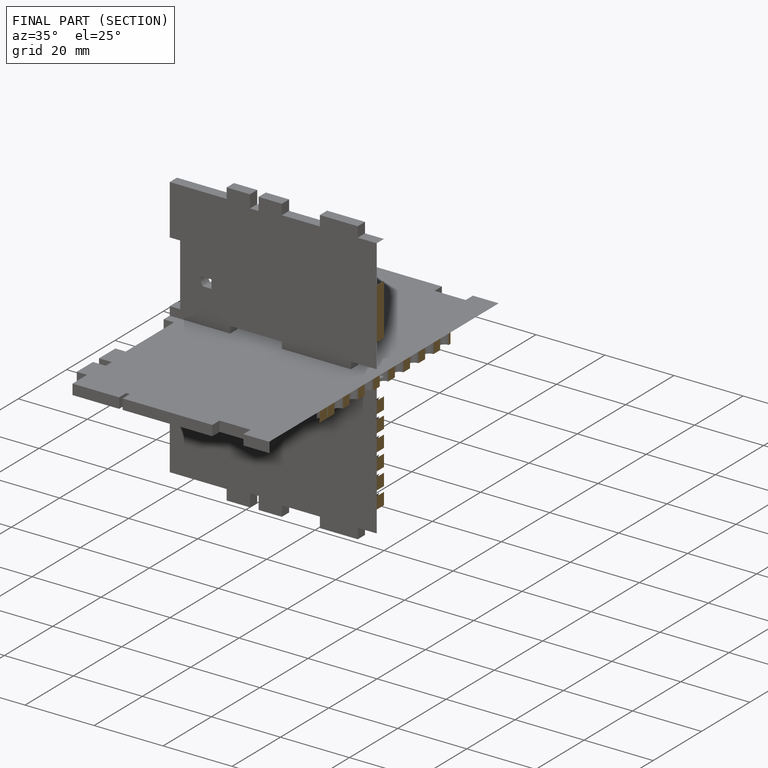
[diagram: finished part — half-section view (interior)]
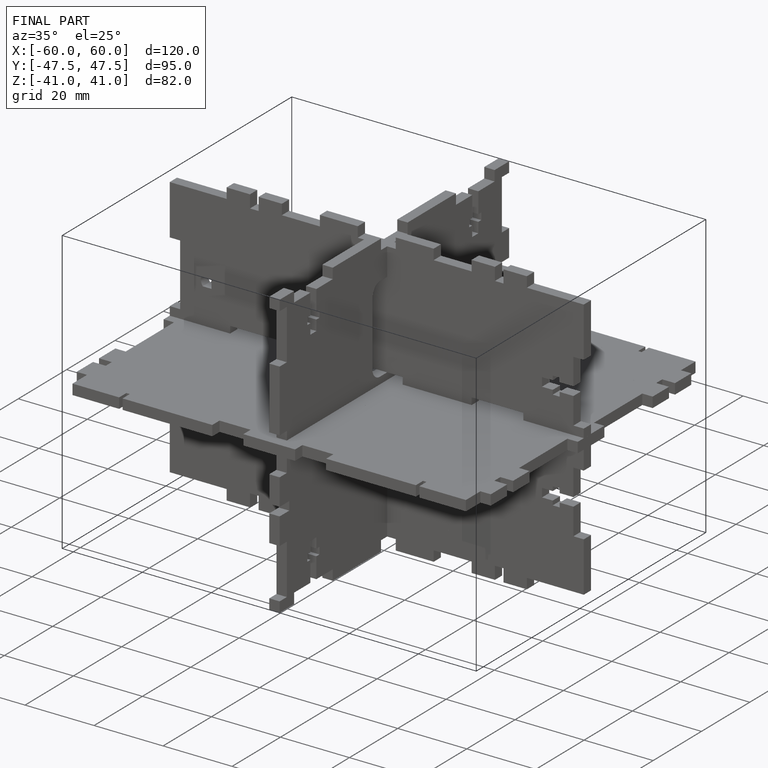
[diagram: finished part — iso view with bounding-box wireframe]
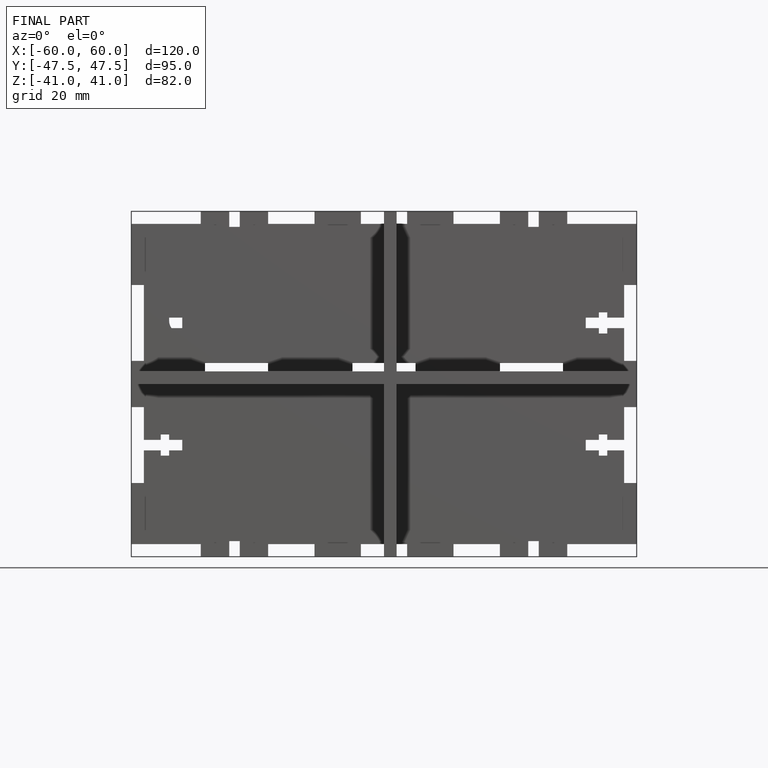
[diagram: finished part — front view with bounding-box wireframe]
